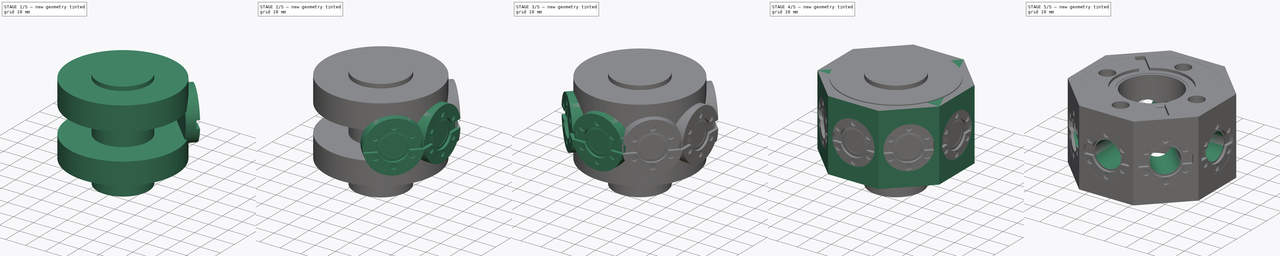
[diagram: build sequence overview — one tinted view per stage of 5, left to right]
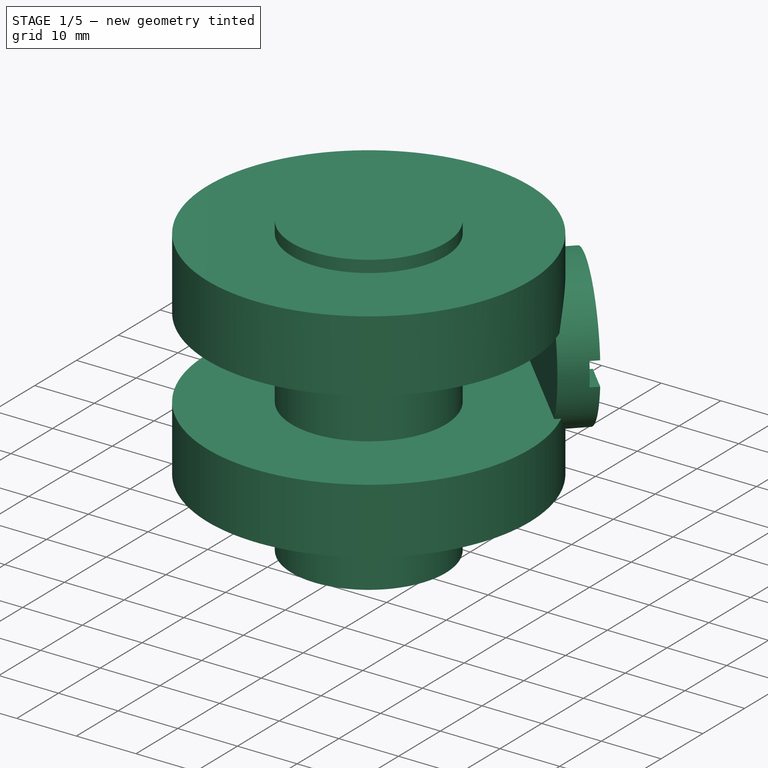
[diagram: stage 1 of 5 — iso view after this stage's code; geometry added in this stage tinted green]
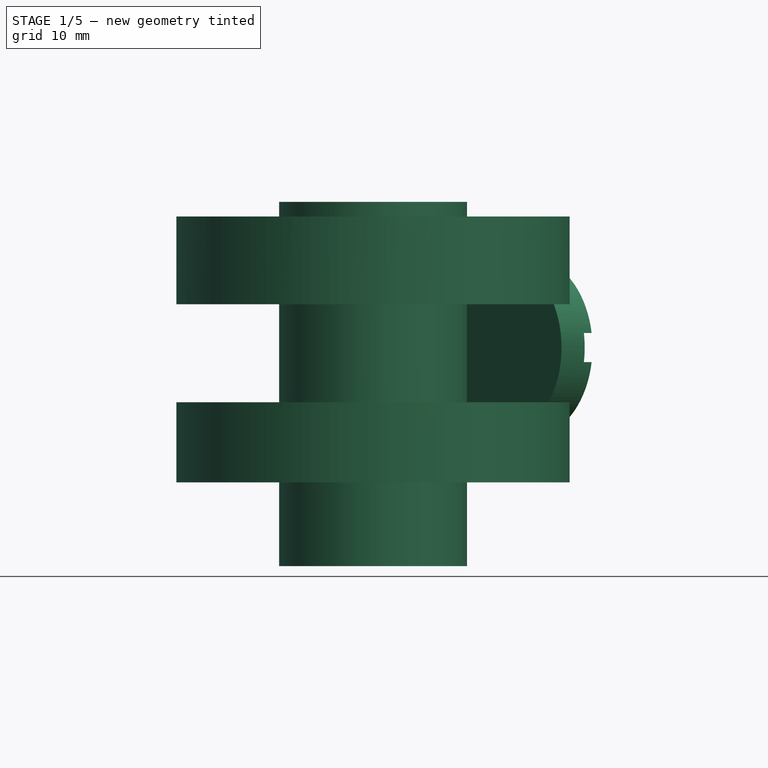
[diagram: stage 1 of 5 — front view after this stage's code; geometry added in this stage tinted green]
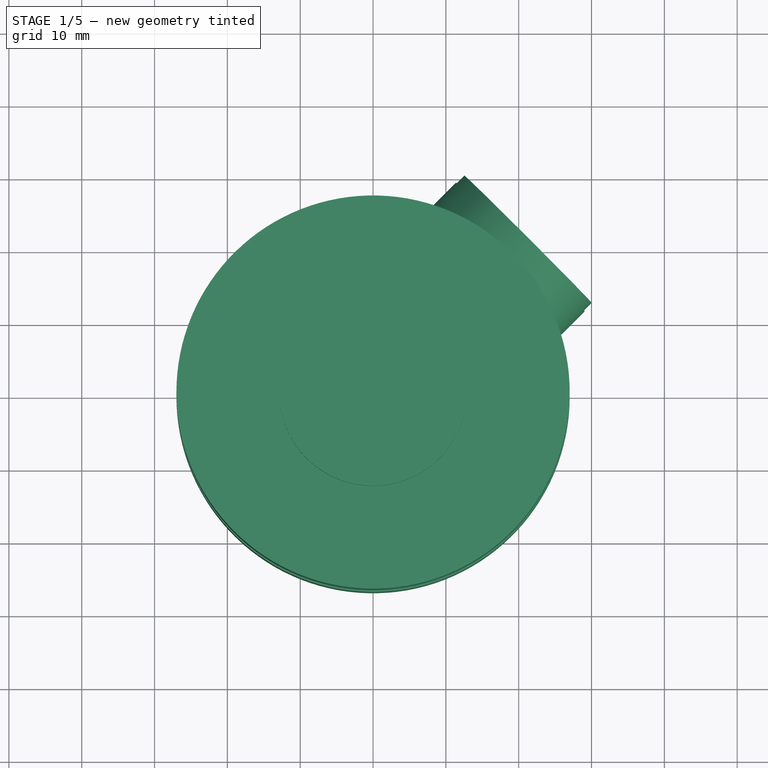
[diagram: stage 1 of 5 — top view after this stage's code; geometry added in this stage tinted green]
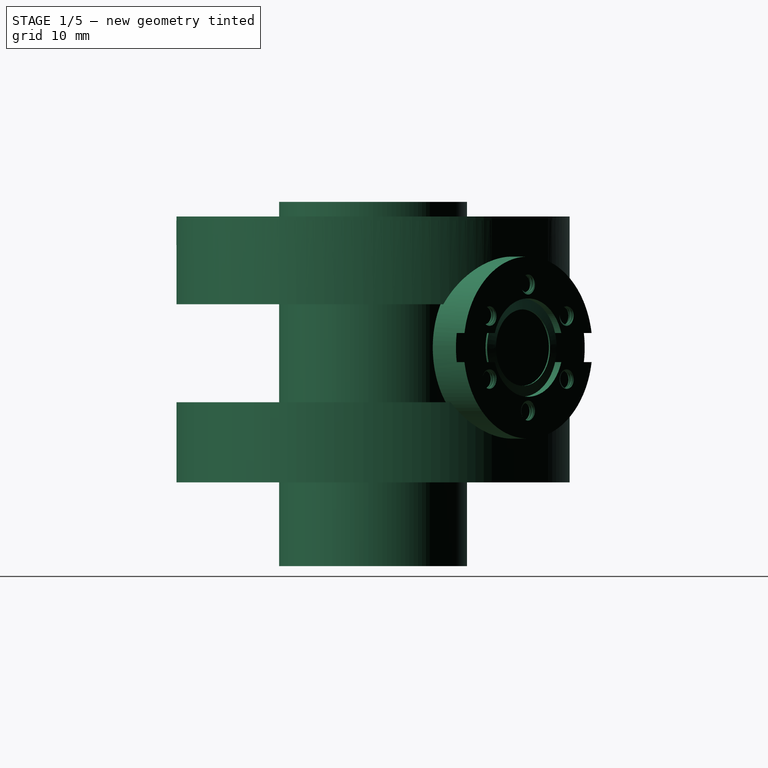
[diagram: stage 1 of 5 — right view after this stage's code; geometry added in this stage tinted green]
FCSTD DOCUMENT  (FreeCAD 0.21R33668 +7 (Git))
Label: CF25CF10Octagon
License: All rights reserved
LicenseURL: https://en.wikipedia.org/wiki/All_rights_reserved
objects: Part::Cylinder×57, Part::Cut×54, Part::Compound×27, Part::MultiFuse×25, Part::Box×20, Part::FeaturePython×18, Part::Cone×10, Spreadsheet::Sheet×2, Sketcher::SketchObject×1, PartDesign::Pad×1, PartDesign::Body×1
note: 205 computed .brp shape members not serialized (recipe doc carries the construction recipe); baked Part::Feature solids carry a one-line shape summary decoded from their .brp

FEATURE [Part::Box] Box016  label="Cube016"
  AttacherType = Attacher::AttachEngine3D
  Height = 1.5
  Length = 6.75
  Placement = pos=(6.25,-2,0) rot=(0,0,1;0rad)
  Width = 4
  expr: .Placement.Base.x = <<ConflatFlange>>.cf_sealrecess / 2 - 0.5
  expr: .Placement.Base.y = -2
  expr: Length = (<<ConflatFlange>>.cf_od - <<ConflatFlange>>.cf_sealrecess) / 2 + 1
FEATURE [Part::Box] Box017  label="Cube017"
  AttacherType = Attacher::AttachEngine3D
  Height = 1.5
  Length = 6.75
  Placement = pos=(-13,-2,0) rot=(0,0,1;0rad)
  Width = 4
  expr: .Placement.Base.x = -<<ConflatFlange>>.cf_sealrecess / 2 + 0.5 - ((<<ConflatFlange>>.cf_od - <<ConflatFlange>>.cf_sealrecess) / 2 + 1)
  expr: .Placement.Base.y = -2
  expr: Length = (<<ConflatFlange>>.cf_od - <<ConflatFlange>>.cf_sealrecess) / 2 + 1
FEATURE [Part::MultiFuse] Fusion022
  Placement = pos=(0,0,0) rot=(0,0,1;0.523599rad)
  Shapes = -> [Box017,Box016]
  expr: .Placement.Rotation.Angle = 360 / (<<ConflatFlange>>.cf_nbolts * 2)
FEATURE [Part::FeaturePython] ScrewTap006  label="3x2-ScrewTap006"  # Fasteners workbench fastener (typed FeaturePython)
  Placement = pos=(8.8,0,1) rot=(0,0,1;0rad)
  diameter = 29
  diameterCustom = 3
  invert = false
  leftHanded = false
  length = 2
  matchOuter = false
  offset = 0
  pitchCustom = 0.5
  thread = true
  type = 2
  expr: .Placement.Base.x = <<ConflatFlange>>.cf_boltcircle / 2
  expr: .Placement.Base.z = <<ConflatFlange>>.cf_thickness - <<ConflatFlange>>.cf_materialbelowtap
  expr: diameterCustom = <<ConflatFlange>>.cf_boltm
  expr: length = <<ConflatFlange>>.cf_thickness - <<ConflatFlange>>.cf_materialbelowtap
  expr: pitchCustom = <<ConflatFlange>>.cf_boltinclination
FEATURE [Part::Box] Box018  label="Cube018"
  AttacherType = Attacher::AttachEngine3D
  Height = 1.5
  Length = 6.75
  Placement = pos=(6.25,-2,0) rot=(0,0,1;0rad)
  Width = 4
  expr: .Placement.Base.x = <<ConflatFlange>>.cf_sealrecess / 2 - 0.5
  expr: .Placement.Base.y = -2
  expr: Length = (<<ConflatFlange>>.cf_od - <<ConflatFlange>>.cf_sealrecess) / 2 + 1
FEATURE [Part::Box] Box019  label="Cube019"
  AttacherType = Attacher::AttachEngine3D
  Height = 1.5
  Length = 6.75
  Placement = pos=(-13,-2,0) rot=(0,0,1;0rad)
  Width = 4
  expr: .Placement.Base.x = -<<ConflatFlange>>.cf_sealrecess / 2 + 0.5 - ((<<ConflatFlange>>.cf_od - <<ConflatFlange>>.cf_sealrecess) / 2 + 1)
  expr: .Placement.Base.y = -2
  expr: Length = (<<ConflatFlange>>.cf_od - <<ConflatFlange>>.cf_sealrecess) / 2 + 1
FEATURE [Part::Cone] Cone009
  Angle = 360
  AttacherType = Attacher::AttachEngine3D
  Height = 0.22
  Radius1 = 5.25
  Radius2 = 6.75
  expr: Height = 1.2 - 0.98
  expr: Radius1 = <<ConflatFlange>>.cf_knife / 2
  expr: Radius2 = <<ConflatFlange>>.cf_sealrecess / 2
FEATURE [Part::Cylinder] Cylinder062  label="Blank009"
  Angle = 360
  AttacherType = Attacher::AttachEngine3D
  FirstAngle = 0
  Height = 6
  Radius = 12.5
  SecondAngle = 0
  expr: Height = <<ConflatFlange>>.cf_thickness
  expr: Radius = <<ConflatFlange>>.cf_od / 2
FEATURE [Part::Cylinder] Cylinder063  label="SealRecess009"
  Angle = 360
  AttacherType = Attacher::AttachEngine3D
  FirstAngle = 0
  Height = 1.2
  Radius = 6.75
  SecondAngle = 0
  expr: Radius = <<ConflatFlange>>.cf_sealrecess / 2
FEATURE [Part::Cut] Cut056
  Base = -> Cylinder062
  Tool = -> Cylinder063
FEATURE [Part::Cylinder] Cylinder064
  Angle = 360
  AttacherType = Attacher::AttachEngine3D
  FirstAngle = 0
  Height = 0.22
  Radius = 5.25
  SecondAngle = 0
  expr: Height = 1.2 - 0.98
  expr: Radius = <<ConflatFlange>>.cf_knife / 2
FEATURE [Part::Cut] Cut057  label="KnifeEdge009"
  Base = -> Cone009
  Placement = pos=(0,0,0.98) rot=(0,0,1;0rad)
  Tool = -> Cylinder064
FEATURE [Part::Cylinder] Cylinder065
  Angle = 360
  AttacherType = Attacher::AttachEngine3D
  FirstAngle = 0
  Height = 1.5
  Radius = 6.75
  SecondAngle = 0
  expr: Radius = <<ConflatFlange>>.cf_sealrecess / 2
FEATURE [Part::MultiFuse] Fusion023  label="UndrilledBlank009"
  Shapes = -> [Cut056,Cut057]
FEATURE [Part::MultiFuse] Fusion024
  Placement = pos=(0,0,0) rot=(0,0,1;0.523599rad)
  Shapes = -> [Box019,Box018]
  expr: .Placement.Rotation.Angle = 360 / (<<ConflatFlange>>.cf_nbolts * 2)
FEATURE [Part::Cut] Cut059  label="LeakTestGrooves010"
  Base = -> Fusion024
  Tool = -> Cylinder065
FEATURE [Part::FeaturePython] ScrewTap007  label="3x2-ScrewTap007"  # Fasteners workbench fastener (typed FeaturePython)
  Placement = pos=(8.8,0,1) rot=(0,0,1;0rad)
  diameter = 29
  diameterCustom = 3
  invert = false
  leftHanded = false
  length = 2
  matchOuter = false
  offset = 0
  pitchCustom = 0.5
  thread = true
  type = 2
  expr: .Placement.Base.x = <<ConflatFlange>>.cf_boltcircle / 2
  expr: .Placement.Base.z = <<ConflatFlange>>.cf_thickness - <<ConflatFlange>>.cf_materialbelowtap
  expr: diameterCustom = <<ConflatFlange>>.cf_boltm
  expr: length = <<ConflatFlange>>.cf_thickness - <<ConflatFlange>>.cf_materialbelowtap
  expr: pitchCustom = <<ConflatFlange>>.cf_boltinclination
FEATURE [Part::FeaturePython] Array009  label="BoltHoleArray009"  # Draft array (typed FeaturePython)
  AlwaysSyncPlacement = false
  Angle = 360
  ArrayType = 1
  Axis = (0,0,1)
  Base = -> ScrewTap007
  Center = (0,0,0)
  Count = 6
  ExpandArray = false
  Fuse = false
  IntervalAxis = (0,0,0)
  IntervalX = (50,0,0)
  IntervalY = (0,50,0)
  IntervalZ = (0,0,50)
  NumberCircles = 3
  NumberPolar = 6
  NumberX = 2
  NumberY = 2
  NumberZ = 1
  PlacementList = 6 placements: [(8.8,0,1),(4.4,7.62102,1),(-4.4,7.62102,1),(-8.8,1.07769e-15,1),(-4.4,-7.62102,1),(4.4,-7.62102,1)]
  RadialDistance = 50
  ScaleList = (6) [(1,1,1),(1,1,1),(1,1,1),(1,1,1),(1,1,1),(1,1,1)]
  Symmetry = 1
  TangentialDistance = 25
  expr: NumberPolar = <<ConflatFlange>>.cf_nbolts
FEATURE [Part::Cut] Cut058  label="BlankFlange_NonRotatable_Tapped_NoGrooves007"
  Base = -> Fusion023
  Tool = -> Array009
FEATURE [Part::Cut] Cut060  label="BlankFlange_NonRotatable_Tapped007"
  Base = -> Cut058
  Placement = pos=(0,0,0) rot=(0,0,-1;0.523599rad)
  Tool = -> Cut059
FEATURE [Part::Compound] Compound025
  Links = -> [Cut060]
  Placement = pos=(0,30.1,12.5) rot=(1,0,0;1.5708rad)
FEATURE [Part::Compound] Compound026
  Links = -> [Compound025]
  Placement = pos=(0,0,0) rot=(0,0,1;5.49779rad)
FEATURE [Spreadsheet::Sheet] Spreadsheet001  label="ConflatFlange001"
  CF = 2
  cells = A1='CF; B1='Outside Diameter; C1='Maximum tube diameter; D1='Number of bolts; E1='Bolt hole diameter; F1='Tap hole diameter; G1='Bolt Thread (metric); H1='Bot inclination; I1='Bolt Circle; J1='Bolt position tolerance; K1='Seal recess; L1='Knife edge; M1='Pipe attachment depth; N1='Setback (inner rotatable); O1='Thickness; Q1='Calculated Quantities; A2==hiddenref(.CF.String); B2(cf_od)==.B5; C2(cf_maxtubedia)==.C5; D2(cf_nbolts)==.D5; E2(cf_boltdia)==.E5; F2(cf_tapdia)==.F5; G2(cf_boltm)==.G5; H2(cf_boltinclination)==.H5; I2(cf_boltcircle)==.I5; J2(cf_bolttolerance)==.J5; K2(cf_sealrecess)==.K5; L2(cf_knife)==.L5; M2(cf_pipedepth)==.M5; N2(cf_setbackrot)==.N5; O2(cf_thickness)==.O5; Q2='Knife edge width; R2(cf__kfwidth)==(cf_sealrecess - cf_knife) / 2; A3='10; B3=25; C3=12; D3=6; E3=3.3; F3=2.39; G3=3; H3=0.5; I3=17.6; J3=0.1; K3=13.5; L3=10.5; M3=3; N3=0; O3=6; Q3='Knife height; R3(cf__kfheight)==tan(20 * 3.14 / 180) * cf__kfwidth; A4='16; B4=33.8; C4=19.4; D4=6; E4=4.4; F4=3.14; G4=4; H4=0.7; I4=27; J4=0.1; K4=21.4; L4=18.3; M4=3.3; N4=5.9; O4=7; A5='25; B5=54; C5=25.8; D5=4; E5=6.8; F5=4.77; G5=6; H5=1; I5=41.3; J5=0.2; K5=33; L5=27.7; M5=4.3; N5=6; O5=11.5; A6='40; B6=69.9; C6=44.5; D6=6; E6=6.8; F6=4.77; G6=6; H6=1; I6=58.7; J6=0.2; K6=48.3; L6=41.9; M6=4.3; N6=7.7; O6=12.5; A7='50; B7=85.7; C7=51; D7=8; E7=8.4; F7=6.47; G7=8; H7=1.25; I7=72.4; J7=0.2; K7=61.8; L7=55.9; M7=4.9; N7=9.7; O7=16; A8='63; B8=114.3; C8=70; D8=8; E8=8.4; F8=6.47; G8=8; H8=1.25; I8=92.2; J8=0.2; K8=82.5; L8=77.2; M8=6.4; N8=12.7; O8=17; A9='75; B9=117.4; C9=76.2; D9=10; E9=8.4; F9=6.47; G9=8; H9=1.25; I9=102.3; J9=0.2; K9=91.6; L9=85.2; M9=6.5; N9=13; O9=17.5; A10='100; B10=152.4; C10=108; D10=16; E10=8.4; F10=6.47; G10=8; H10=1.25; I10=130.3; J10=0.2; K10=120.6; L10=115.3; M10=7.2; N10=14.3; O10=19.5; A11='125; B11=171.5; C11=127; D11=18; E11=8.4; F11=6.47; G11=8; H11=1.25; I11=151.6; J11=0.2; K11=141.8; L11=136.3; M11=7.2; N11=14.3; O11=21; A12='160; B12=203.2; C12=159; D12=20; E12=8.4; F12=6.47; G12=8; H12=1.25; I12=181; J12=0.2; K12=171.4; L12=166.1; M12=8; N12=15.9; O12=21; A13='200; B13=254; C13=206; D13=24; E13=8.4; F13=6.47; G13=8; H13=1.25; I13=231.8; J13=0.2; K13=222.2; L13=216.9; M13=8.6; N13=17.2; O13=24; +88 more cells
  expr: .CF.Enum = cells[<<A3:|>>]
  expr: .cells.Bind.B2.O2 = tuple(.cells; <<B>> + str(hiddenref(CF) + 3); <<O>> + str(hiddenref(CF) + 3))
FEATURE [Part::Cylinder] Cylinder067
  Angle = 360
  AttacherType = Attacher::AttachEngine3D
  FirstAngle = 0
  Height = 11
  Placement = pos=(0,0,-6) rot=(0,0,1;0rad)
  Radius = 27
  SecondAngle = 0
FEATURE [Part::Cylinder] Cylinder068
  Angle = 360
  AttacherType = Attacher::AttachEngine3D
  FirstAngle = 0
  Height = 11
  Placement = pos=(0,0,19.5) rot=(0,0,1;0rad)
  Radius = 27
  SecondAngle = 0
FEATURE [Part::MultiFuse] Fusion027
  Shapes = -> [Cylinder067,Cylinder068]
FEATURE [Part::Box] Box020  label="Cube020"
  AttacherType = Attacher::AttachEngine3D
  Height = 1.5
  Length = 11.5
  Placement = pos=(16,-2,0) rot=(0,0,1;0rad)
  Width = 4
  expr: .Placement.Base.x = <<ConflatFlange001>>.cf_sealrecess / 2 - 0.5
  expr: .Placement.Base.y = -2
  expr: Length = (<<ConflatFlange001>>.cf_od - <<ConflatFlange001>>.cf_sealrecess) / 2 + 1
FEATURE [Part::Box] Box021  label="Cube021"
  AttacherType = Attacher::AttachEngine3D
  Height = 1.5
  Length = 11.5
  Placement = pos=(-27.5,-2,0) rot=(0,0,1;0rad)
  Width = 4
  expr: .Placement.Base.x = -<<ConflatFlange001>>.cf_sealrecess / 2 + 0.5 - ((<<ConflatFlange001>>.cf_od - <<ConflatFlange001>>.cf_sealrecess) / 2 + 1)
  expr: .Placement.Base.y = -2
  expr: Length = (<<ConflatFlange001>>.cf_od - <<ConflatFlange001>>.cf_sealrecess) / 2 + 1
FEATURE [Part::Cone] Cone010
  Angle = 360
  AttacherType = Attacher::AttachEngine3D
  Height = 0.22
  Radius1 = 13.85
  Radius2 = 16.5
  expr: Height = 1.2 - 0.98
  expr: Radius1 = <<ConflatFlange001>>.cf_knife / 2
  expr: Radius2 = <<ConflatFlange001>>.cf_sealrecess / 2
FEATURE [Part::Cylinder] Cylinder069  label="SealRecess010"
  Angle = 360
  AttacherType = Attacher::AttachEngine3D
  FirstAngle = 0
  Height = 1.2
  Radius = 16.5
  SecondAngle = 0
  expr: Radius = <<ConflatFlange001>>.cf_sealrecess / 2
FEATURE [Part::Cylinder] Cylinder070
  Angle = 360
  AttacherType = Attacher::AttachEngine3D
  FirstAngle = 0
  Height = 0.22
  Radius = 13.85
  SecondAngle = 0
  expr: Height = 1.2 - 0.98
  expr: Radius = <<ConflatFlange001>>.cf_knife / 2
FEATURE [Part::Cut] Cut064  label="KnifeEdge010"
  Base = -> Cone010
  Placement = pos=(0,0,0.98) rot=(0,0,1;0rad)
  Tool = -> Cylinder070
FEATURE [Part::Cylinder] Cylinder071
  Angle = 360
  AttacherType = Attacher::AttachEngine3D
  FirstAngle = 0
  Height = 11.5
  Placement = pos=(20.65,0,0) rot=(0,0,1;0rad)
  Radius = 3.4
  SecondAngle = 0
  expr: .Placement.Base.x = <<ConflatFlange001>>.cf_boltcircle / 2
  expr: Height = <<ConflatFlange001>>.cf_thickness
  expr: Radius = <<ConflatFlange001>>.cf_boltdia / 2
FEATURE [Part::FeaturePython] Array010  label="BoltHoleArray010"  # Draft array (typed FeaturePython)
  AlwaysSyncPlacement = false
  Angle = 360
  ArrayType = 1
  Axis = (0,0,1)
  Base = -> Cylinder071
  Center = (0,0,0)
  Count = 4
  ExpandArray = false
  Fuse = false
  IntervalAxis = (0,0,0)
  IntervalX = (50,0,0)
  IntervalY = (0,50,0)
  IntervalZ = (0,0,50)
  NumberCircles = 3
  NumberPolar = 4
  NumberX = 2
  NumberY = 2
  NumberZ = 1
  PlacementList = 4 placements: [(20.65,0,0),(0,20.65,0),(-20.65,2.5289e-15,0),(-4.58522e-15,-20.65,0)]
  RadialDistance = 50
  ScaleList = (4) [(1,1,1),(1,1,1),(1,1,1),(1,1,1)]
  Symmetry = 1
  TangentialDistance = 25
  expr: NumberPolar = <<ConflatFlange001>>.cf_nbolts
FEATURE [Part::Cylinder] Cylinder072
  Angle = 360
  AttacherType = Attacher::AttachEngine3D
  FirstAngle = 0
  Height = 1.5
  Radius = 16.5
  SecondAngle = 0
  expr: Radius = <<ConflatFlange001>>.cf_sealrecess / 2
FEATURE [Part::Cylinder] Cylinder073  label="Blank010"
  Angle = 360
  AttacherType = Attacher::AttachEngine3D
  FirstAngle = 0
  Height = 11.5
  Radius = 27
  SecondAngle = 0
  expr: Height = <<ConflatFlange001>>.cf_thickness
  expr: Radius = <<ConflatFlange001>>.cf_od / 2
FEATURE [Part::Cut] Cut068
  Base = -> Cylinder073
  Tool = -> Cylinder069
FEATURE [Part::MultiFuse] Fusion028
  Placement = pos=(0,0,0) rot=(0,0,1;0.785398rad)
  Shapes = -> [Box021,Box020]
  expr: .Placement.Rotation.Angle = 360 / (<<ConflatFlange001>>.cf_nbolts * 2)
FEATURE [Part::Cut] Cut066  label="LeakTestGrooves011"
  Base = -> Fusion028
  Tool = -> Cylinder072
FEATURE [Part::MultiFuse] Fusion029  label="UndrilledBlank010"
  Shapes = -> [Cut068,Cut064]
FEATURE [Part::Cut] Cut065  label="BlankFlange_NonRotatable_NoGrooves001"
  Base = -> Fusion029
  Tool = -> Array010
FEATURE [Part::Cut] Cut067  label="BlankFlange_NonRotatable001"
  Base = -> Cut065
  Placement = pos=(0,0,29.95) rot=(0,1,0;3.14159rad)
  Tool = -> Cut066
FEATURE [Part::Cylinder] Cylinder074
  Angle = 360
  AttacherType = Attacher::AttachEngine3D
  FirstAngle = 0
  Height = 50
  Placement = pos=(0,0,-17.5) rot=(0,0,1;0rad)
  Radius = 12.9
  SecondAngle = 0
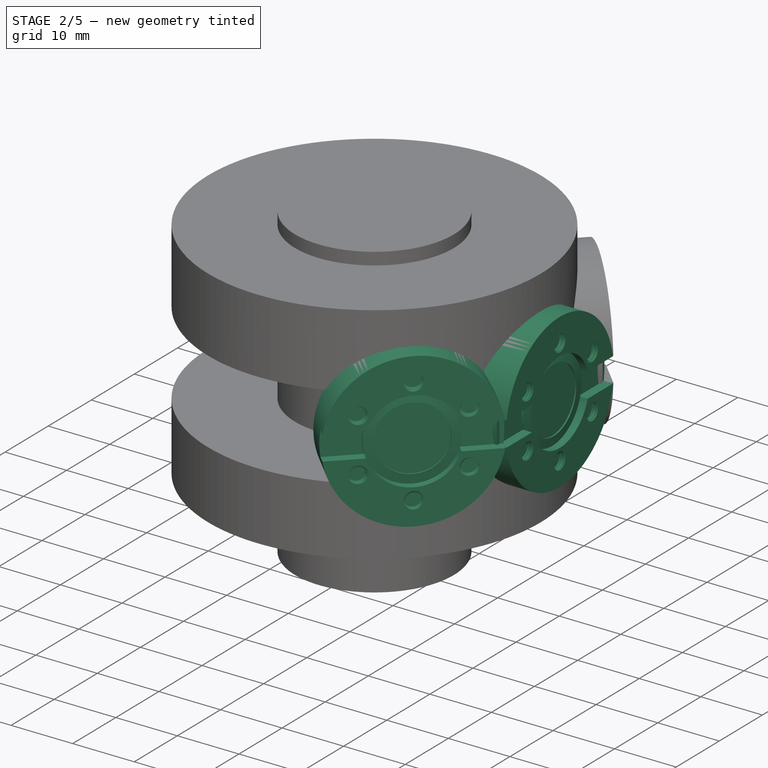
[diagram: stage 2 of 5 — iso view after this stage's code; geometry added in this stage tinted green]
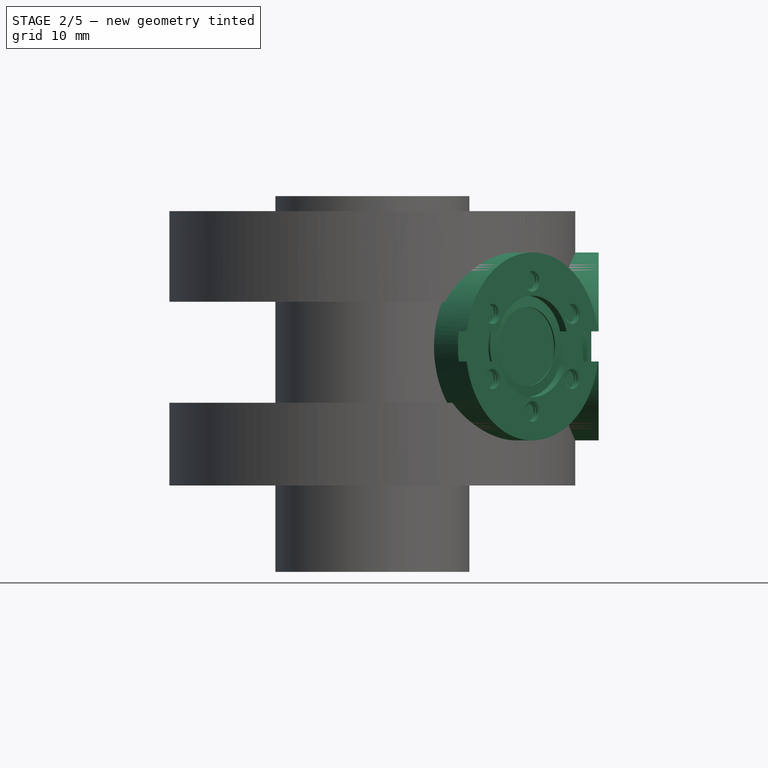
[diagram: stage 2 of 5 — front view after this stage's code; geometry added in this stage tinted green]
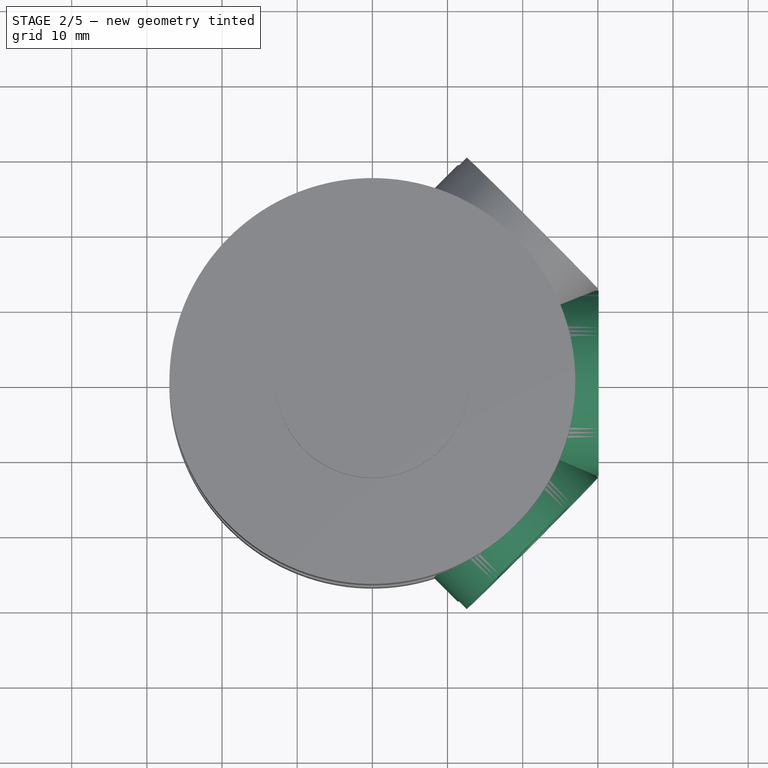
[diagram: stage 2 of 5 — top view after this stage's code; geometry added in this stage tinted green]
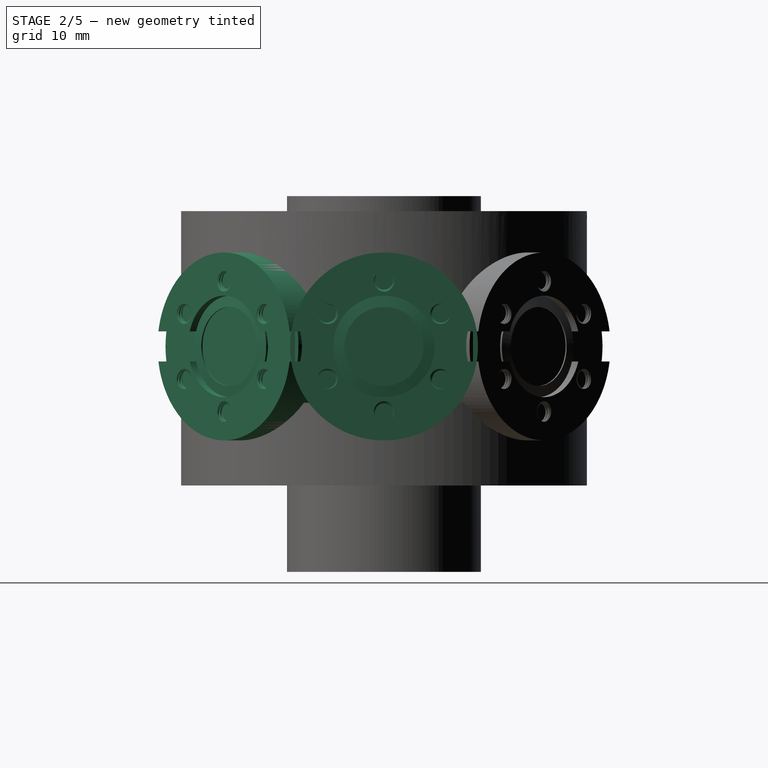
[diagram: stage 2 of 5 — right view after this stage's code; geometry added in this stage tinted green]
FEATURE [Part::Box] Box012  label="Cube012"
  AttacherType = Attacher::AttachEngine3D
  Height = 1.5
  Length = 6.75
  Placement = pos=(6.25,-2,0) rot=(0,0,1;0rad)
  Width = 4
  expr: .Placement.Base.x = <<ConflatFlange>>.cf_sealrecess / 2 - 0.5
  expr: .Placement.Base.y = -2
  expr: Length = (<<ConflatFlange>>.cf_od - <<ConflatFlange>>.cf_sealrecess) / 2 + 1
FEATURE [Part::Box] Box013  label="Cube013"
  AttacherType = Attacher::AttachEngine3D
  Height = 1.5
  Length = 6.75
  Placement = pos=(-13,-2,0) rot=(0,0,1;0rad)
  Width = 4
  expr: .Placement.Base.x = -<<ConflatFlange>>.cf_sealrecess / 2 + 0.5 - ((<<ConflatFlange>>.cf_od - <<ConflatFlange>>.cf_sealrecess) / 2 + 1)
  expr: .Placement.Base.y = -2
  expr: Length = (<<ConflatFlange>>.cf_od - <<ConflatFlange>>.cf_sealrecess) / 2 + 1
FEATURE [Part::Cone] Cone006
  Angle = 360
  AttacherType = Attacher::AttachEngine3D
  Height = 0.22
  Radius1 = 5.25
  Radius2 = 6.75
  expr: Height = 1.2 - 0.98
  expr: Radius1 = <<ConflatFlange>>.cf_knife / 2
  expr: Radius2 = <<ConflatFlange>>.cf_sealrecess / 2
FEATURE [Part::Cylinder] Cylinder050  label="Blank006"
  Angle = 360
  AttacherType = Attacher::AttachEngine3D
  FirstAngle = 0
  Height = 6
  Radius = 12.5
  SecondAngle = 0
  expr: Height = <<ConflatFlange>>.cf_thickness
  expr: Radius = <<ConflatFlange>>.cf_od / 2
FEATURE [Part::Cylinder] Cylinder051  label="SealRecess006"
  Angle = 360
  AttacherType = Attacher::AttachEngine3D
  FirstAngle = 0
  Height = 1.2
  Radius = 6.75
  SecondAngle = 0
  expr: Radius = <<ConflatFlange>>.cf_sealrecess / 2
FEATURE [Part::Cut] Cut041
  Base = -> Cylinder050
  Tool = -> Cylinder051
FEATURE [Part::Cylinder] Cylinder052
  Angle = 360
  AttacherType = Attacher::AttachEngine3D
  FirstAngle = 0
  Height = 0.22
  Radius = 5.25
  SecondAngle = 0
  expr: Height = 1.2 - 0.98
  expr: Radius = <<ConflatFlange>>.cf_knife / 2
FEATURE [Part::Cut] Cut042  label="KnifeEdge006"
  Base = -> Cone006
  Placement = pos=(0,0,0.98) rot=(0,0,1;0rad)
  Tool = -> Cylinder052
FEATURE [Part::MultiFuse] Fusion017  label="UndrilledBlank006"
  Shapes = -> [Cut041,Cut042]
FEATURE [Part::MultiFuse] Fusion018
  Placement = pos=(0,0,0) rot=(0,0,1;0.523599rad)
  Shapes = -> [Box013,Box012]
  expr: .Placement.Rotation.Angle = 360 / (<<ConflatFlange>>.cf_nbolts * 2)
FEATURE [Part::FeaturePython] ScrewTap004  label="3x2-ScrewTap004"  # Fasteners workbench fastener (typed FeaturePython)
  Placement = pos=(8.8,0,1) rot=(0,0,1;0rad)
  diameter = 29
  diameterCustom = 3
  invert = false
  leftHanded = false
  length = 2
  matchOuter = false
  offset = 0
  pitchCustom = 0.5
  thread = true
  type = 2
  expr: .Placement.Base.x = <<ConflatFlange>>.cf_boltcircle / 2
  expr: .Placement.Base.z = <<ConflatFlange>>.cf_thickness - <<ConflatFlange>>.cf_materialbelowtap
  expr: diameterCustom = <<ConflatFlange>>.cf_boltm
  expr: length = <<ConflatFlange>>.cf_thickness - <<ConflatFlange>>.cf_materialbelowtap
  expr: pitchCustom = <<ConflatFlange>>.cf_boltinclination
FEATURE [Part::Box] Box014  label="Cube014"
  AttacherType = Attacher::AttachEngine3D
  Height = 1.5
  Length = 6.75
  Placement = pos=(6.25,-2,0) rot=(0,0,1;0rad)
  Width = 4
  expr: .Placement.Base.x = <<ConflatFlange>>.cf_sealrecess / 2 - 0.5
  expr: .Placement.Base.y = -2
  expr: Length = (<<ConflatFlange>>.cf_od - <<ConflatFlange>>.cf_sealrecess) / 2 + 1
FEATURE [Part::Box] Box015  label="Cube015"
  AttacherType = Attacher::AttachEngine3D
  Height = 1.5
  Length = 6.75
  Placement = pos=(-13,-2,0) rot=(0,0,1;0rad)
  Width = 4
  expr: .Placement.Base.x = -<<ConflatFlange>>.cf_sealrecess / 2 + 0.5 - ((<<ConflatFlange>>.cf_od - <<ConflatFlange>>.cf_sealrecess) / 2 + 1)
  expr: .Placement.Base.y = -2
  expr: Length = (<<ConflatFlange>>.cf_od - <<ConflatFlange>>.cf_sealrecess) / 2 + 1
FEATURE [Part::Cone] Cone007
  Angle = 360
  AttacherType = Attacher::AttachEngine3D
  Height = 0.22
  Radius1 = 5.25
  Radius2 = 6.75
  expr: Height = 1.2 - 0.98
  expr: Radius1 = <<ConflatFlange>>.cf_knife / 2
  expr: Radius2 = <<ConflatFlange>>.cf_sealrecess / 2
FEATURE [Part::Cylinder] Cylinder054  label="Blank007"
  Angle = 360
  AttacherType = Attacher::AttachEngine3D
  FirstAngle = 0
  Height = 6
  Radius = 12.5
  SecondAngle = 0
  expr: Height = <<ConflatFlange>>.cf_thickness
  expr: Radius = <<ConflatFlange>>.cf_od / 2
FEATURE [Part::Cylinder] Cylinder055  label="SealRecess007"
  Angle = 360
  AttacherType = Attacher::AttachEngine3D
  FirstAngle = 0
  Height = 1.2
  Radius = 6.75
  SecondAngle = 0
  expr: Radius = <<ConflatFlange>>.cf_sealrecess / 2
FEATURE [Part::Cut] Cut046
  Base = -> Cylinder054
  Tool = -> Cylinder055
FEATURE [Part::Cylinder] Cylinder056
  Angle = 360
  AttacherType = Attacher::AttachEngine3D
  FirstAngle = 0
  Height = 0.22
  Radius = 5.25
  SecondAngle = 0
  expr: Height = 1.2 - 0.98
  expr: Radius = <<ConflatFlange>>.cf_knife / 2
FEATURE [Part::Cut] Cut047  label="KnifeEdge007"
  Base = -> Cone007
  Placement = pos=(0,0,0.98) rot=(0,0,1;0rad)
  Tool = -> Cylinder056
FEATURE [Part::Cylinder] Cylinder057
  Angle = 360
  AttacherType = Attacher::AttachEngine3D
  FirstAngle = 0
  Height = 1.5
  Radius = 6.75
  SecondAngle = 0
  expr: Radius = <<ConflatFlange>>.cf_sealrecess / 2
FEATURE [Part::MultiFuse] Fusion019  label="UndrilledBlank007"
  Shapes = -> [Cut046,Cut047]
FEATURE [Part::MultiFuse] Fusion020
  Placement = pos=(0,0,0) rot=(0,0,1;0.523599rad)
  Shapes = -> [Box015,Box014]
  expr: .Placement.Rotation.Angle = 360 / (<<ConflatFlange>>.cf_nbolts * 2)
FEATURE [Part::Cut] Cut049  label="LeakTestGrooves008"
  Base = -> Fusion020
  Tool = -> Cylinder057
FEATURE [Part::FeaturePython] ScrewTap005  label="3x2-ScrewTap005"  # Fasteners workbench fastener (typed FeaturePython)
  Placement = pos=(8.8,0,1) rot=(0,0,1;0rad)
  diameter = 29
  diameterCustom = 3
  invert = false
  leftHanded = false
  length = 2
  matchOuter = false
  offset = 0
  pitchCustom = 0.5
  thread = true
  type = 2
  expr: .Placement.Base.x = <<ConflatFlange>>.cf_boltcircle / 2
  expr: .Placement.Base.z = <<ConflatFlange>>.cf_thickness - <<ConflatFlange>>.cf_materialbelowtap
  expr: diameterCustom = <<ConflatFlange>>.cf_boltm
  expr: length = <<ConflatFlange>>.cf_thickness - <<ConflatFlange>>.cf_materialbelowtap
  expr: pitchCustom = <<ConflatFlange>>.cf_boltinclination
FEATURE [Part::FeaturePython] Array007  label="BoltHoleArray007"  # Draft array (typed FeaturePython)
  AlwaysSyncPlacement = false
  Angle = 360
  ArrayType = 1
  Axis = (0,0,1)
  Base = -> ScrewTap005
  Center = (0,0,0)
  Count = 6
  ExpandArray = false
  Fuse = false
  IntervalAxis = (0,0,0)
  IntervalX = (50,0,0)
  IntervalY = (0,50,0)
  IntervalZ = (0,0,50)
  NumberCircles = 3
  NumberPolar = 6
  NumberX = 2
  NumberY = 2
  NumberZ = 1
  PlacementList = 6 placements: [(8.8,0,1),(4.4,7.62102,1),(-4.4,7.62102,1),(-8.8,1.07769e-15,1),(-4.4,-7.62102,1),(4.4,-7.62102,1)]
  RadialDistance = 50
  ScaleList = (6) [(1,1,1),(1,1,1),(1,1,1),(1,1,1),(1,1,1),(1,1,1)]
  Symmetry = 1
  TangentialDistance = 25
  expr: NumberPolar = <<ConflatFlange>>.cf_nbolts
FEATURE [Part::Cut] Cut048  label="BlankFlange_NonRotatable_Tapped_NoGrooves005"
  Base = -> Fusion019
  Tool = -> Array007
FEATURE [Part::Cut] Cut050  label="BlankFlange_NonRotatable_Tapped005"
  Base = -> Cut048
  Placement = pos=(0,0,0) rot=(0,0,-1;0.523599rad)
  Tool = -> Cut049
FEATURE [Part::Compound] Compound021
  Links = -> [Cut050]
  Placement = pos=(0,30.1,12.5) rot=(1,0,0;1.5708rad)
FEATURE [Part::Compound] Compound022
  Links = -> [Compound021]
  Placement = pos=(0,0,0) rot=(0,0,1;3.92699rad)
FEATURE [Part::Cone] Cone008
  Angle = 360
  AttacherType = Attacher::AttachEngine3D
  Height = 0.22
  Radius1 = 5.25
  Radius2 = 6.75
  expr: Height = 1.2 - 0.98
  expr: Radius1 = <<ConflatFlange>>.cf_knife / 2
  expr: Radius2 = <<ConflatFlange>>.cf_sealrecess / 2
FEATURE [Part::Cylinder] Cylinder058  label="Blank008"
  Angle = 360
  AttacherType = Attacher::AttachEngine3D
  FirstAngle = 0
  Height = 6
  Radius = 12.5
  SecondAngle = 0
  expr: Height = <<ConflatFlange>>.cf_thickness
  expr: Radius = <<ConflatFlange>>.cf_od / 2
FEATURE [Part::Cylinder] Cylinder059  label="SealRecess008"
  Angle = 360
  AttacherType = Attacher::AttachEngine3D
  FirstAngle = 0
  Height = 1.2
  Radius = 6.75
  SecondAngle = 0
  expr: Radius = <<ConflatFlange>>.cf_sealrecess / 2
FEATURE [Part::Cut] Cut051
  Base = -> Cylinder058
  Tool = -> Cylinder059
FEATURE [Part::Cylinder] Cylinder060
  Angle = 360
  AttacherType = Attacher::AttachEngine3D
  FirstAngle = 0
  Height = 0.22
  Radius = 5.25
  SecondAngle = 0
  expr: Height = 1.2 - 0.98
  expr: Radius = <<ConflatFlange>>.cf_knife / 2
FEATURE [Part::Cut] Cut052  label="KnifeEdge008"
  Base = -> Cone008
  Placement = pos=(0,0,0.98) rot=(0,0,1;0rad)
  Tool = -> Cylinder060
FEATURE [Part::Cylinder] Cylinder061
  Angle = 360
  AttacherType = Attacher::AttachEngine3D
  FirstAngle = 0
  Height = 1.5
  Radius = 6.75
  SecondAngle = 0
  expr: Radius = <<ConflatFlange>>.cf_sealrecess / 2
FEATURE [Part::MultiFuse] Fusion021  label="UndrilledBlank008"
  Shapes = -> [Cut051,Cut052]
FEATURE [Part::Cut] Cut054  label="LeakTestGrooves009"
  Base = -> Fusion022
  Tool = -> Cylinder061
FEATURE [Part::FeaturePython] Array008  label="BoltHoleArray008"  # Draft array (typed FeaturePython)
  AlwaysSyncPlacement = false
  Angle = 360
  ArrayType = 1
  Axis = (0,0,1)
  Base = -> ScrewTap006
  Center = (0,0,0)
  Count = 6
  ExpandArray = false
  Fuse = false
  IntervalAxis = (0,0,0)
  IntervalX = (50,0,0)
  IntervalY = (0,50,0)
  IntervalZ = (0,0,50)
  NumberCircles = 3
  NumberPolar = 6
  NumberX = 2
  NumberY = 2
  NumberZ = 1
  PlacementList = 6 placements: [(8.8,0,1),(4.4,7.62102,1),(-4.4,7.62102,1),(-8.8,1.07769e-15,1),(-4.4,-7.62102,1),(4.4,-7.62102,1)]
  RadialDistance = 50
  ScaleList = (6) [(1,1,1),(1,1,1),(1,1,1),(1,1,1),(1,1,1),(1,1,1)]
  Symmetry = 1
  TangentialDistance = 25
  expr: NumberPolar = <<ConflatFlange>>.cf_nbolts
FEATURE [Part::Cut] Cut053  label="BlankFlange_NonRotatable_Tapped_NoGrooves006"
  Base = -> Fusion021
  Tool = -> Array008
FEATURE [Part::Cut] Cut055  label="BlankFlange_NonRotatable_Tapped006"
  Base = -> Cut053
  Placement = pos=(0,0,0) rot=(0,0,-1;0.523599rad)
  Tool = -> Cut054
FEATURE [Part::Compound] Compound023
  Links = -> [Cut055]
  Placement = pos=(0,30.1,12.5) rot=(1,0,0;1.5708rad)
FEATURE [Part::Compound] Compound024
  Links = -> [Compound023]
  Placement = pos=(0,0,0) rot=(0,0,1;4.71239rad)
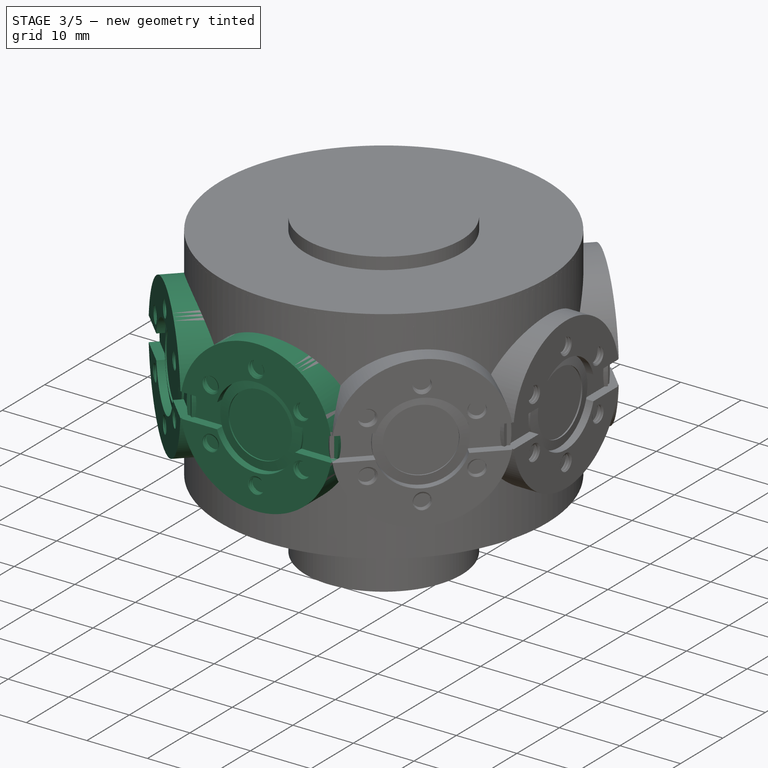
[diagram: stage 3 of 5 — iso view after this stage's code; geometry added in this stage tinted green]
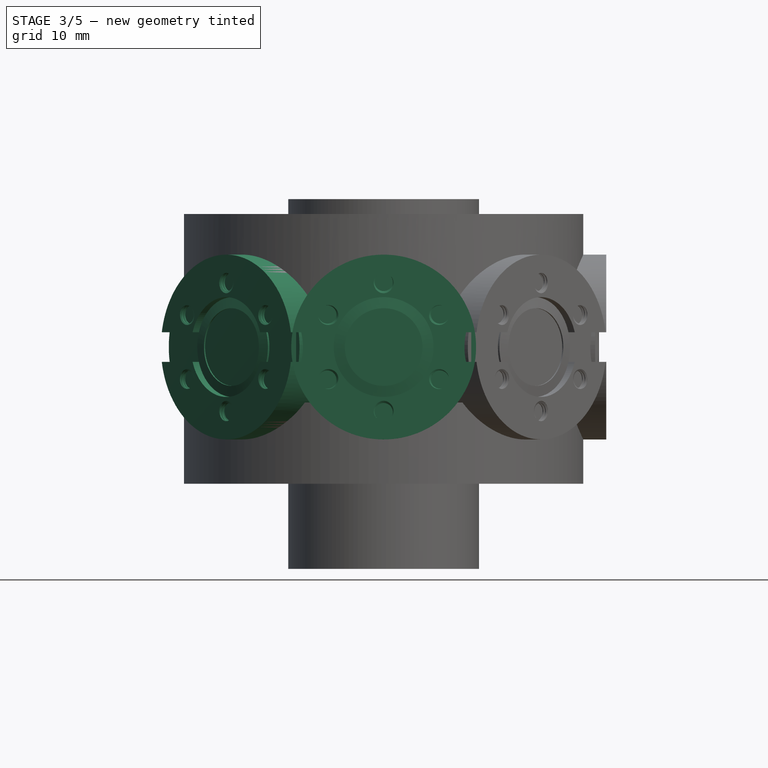
[diagram: stage 3 of 5 — front view after this stage's code; geometry added in this stage tinted green]
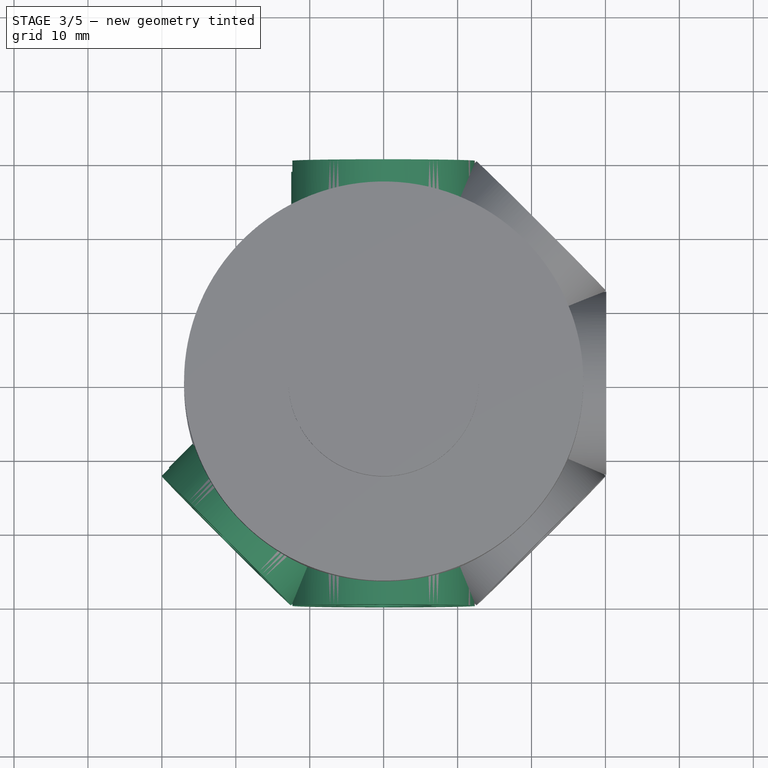
[diagram: stage 3 of 5 — top view after this stage's code; geometry added in this stage tinted green]
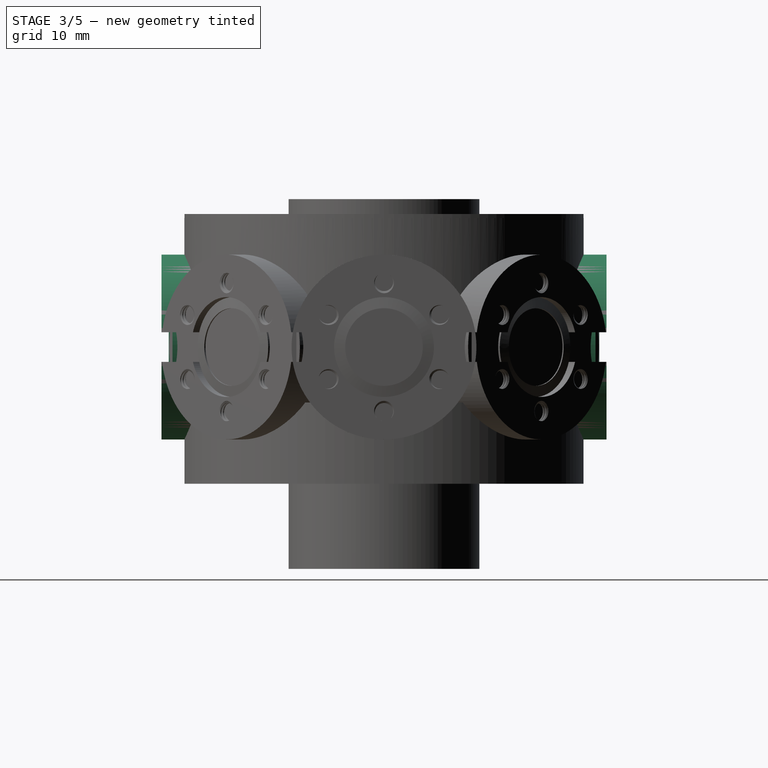
[diagram: stage 3 of 5 — right view after this stage's code; geometry added in this stage tinted green]
FEATURE [Part::Box] Box008  label="Cube008"
  AttacherType = Attacher::AttachEngine3D
  Height = 1.5
  Length = 6.75
  Placement = pos=(6.25,-2,0) rot=(0,0,1;0rad)
  Width = 4
  expr: .Placement.Base.x = <<ConflatFlange>>.cf_sealrecess / 2 - 0.5
  expr: .Placement.Base.y = -2
  expr: Length = (<<ConflatFlange>>.cf_od - <<ConflatFlange>>.cf_sealrecess) / 2 + 1
FEATURE [Part::Box] Box009  label="Cube009"
  AttacherType = Attacher::AttachEngine3D
  Height = 1.5
  Length = 6.75
  Placement = pos=(-13,-2,0) rot=(0,0,1;0rad)
  Width = 4
  expr: .Placement.Base.x = -<<ConflatFlange>>.cf_sealrecess / 2 + 0.5 - ((<<ConflatFlange>>.cf_od - <<ConflatFlange>>.cf_sealrecess) / 2 + 1)
  expr: .Placement.Base.y = -2
  expr: Length = (<<ConflatFlange>>.cf_od - <<ConflatFlange>>.cf_sealrecess) / 2 + 1
FEATURE [Part::Cone] Cone004
  Angle = 360
  AttacherType = Attacher::AttachEngine3D
  Height = 0.22
  Radius1 = 5.25
  Radius2 = 6.75
  expr: Height = 1.2 - 0.98
  expr: Radius1 = <<ConflatFlange>>.cf_knife / 2
  expr: Radius2 = <<ConflatFlange>>.cf_sealrecess / 2
FEATURE [Part::Cylinder] Cylinder042  label="Blank004"
  Angle = 360
  AttacherType = Attacher::AttachEngine3D
  FirstAngle = 0
  Height = 6
  Radius = 12.5
  SecondAngle = 0
  expr: Height = <<ConflatFlange>>.cf_thickness
  expr: Radius = <<ConflatFlange>>.cf_od / 2
FEATURE [Part::Cylinder] Cylinder043  label="SealRecess004"
  Angle = 360
  AttacherType = Attacher::AttachEngine3D
  FirstAngle = 0
  Height = 1.2
  Radius = 6.75
  SecondAngle = 0
  expr: Radius = <<ConflatFlange>>.cf_sealrecess / 2
FEATURE [Part::Cut] Cut031
  Base = -> Cylinder042
  Tool = -> Cylinder043
FEATURE [Part::Cylinder] Cylinder044
  Angle = 360
  AttacherType = Attacher::AttachEngine3D
  FirstAngle = 0
  Height = 0.22
  Radius = 5.25
  SecondAngle = 0
  expr: Height = 1.2 - 0.98
  expr: Radius = <<ConflatFlange>>.cf_knife / 2
FEATURE [Part::Cut] Cut032  label="KnifeEdge004"
  Base = -> Cone004
  Placement = pos=(0,0,0.98) rot=(0,0,1;0rad)
  Tool = -> Cylinder044
FEATURE [Part::Cylinder] Cylinder045
  Angle = 360
  AttacherType = Attacher::AttachEngine3D
  FirstAngle = 0
  Height = 1.5
  Radius = 6.75
  SecondAngle = 0
  expr: Radius = <<ConflatFlange>>.cf_sealrecess / 2
FEATURE [Part::MultiFuse] Fusion013  label="UndrilledBlank004"
  Shapes = -> [Cut031,Cut032]
FEATURE [Part::MultiFuse] Fusion014
  Placement = pos=(0,0,0) rot=(0,0,1;0.523599rad)
  Shapes = -> [Box009,Box008]
  expr: .Placement.Rotation.Angle = 360 / (<<ConflatFlange>>.cf_nbolts * 2)
FEATURE [Part::Cut] Cut034  label="LeakTestGrooves005"
  Base = -> Fusion014
  Tool = -> Cylinder045
FEATURE [Part::FeaturePython] ScrewTap002  label="3x2-ScrewTap002"  # Fasteners workbench fastener (typed FeaturePython)
  Placement = pos=(8.8,0,1) rot=(0,0,1;0rad)
  diameter = 29
  diameterCustom = 3
  invert = false
  leftHanded = false
  length = 2
  matchOuter = false
  offset = 0
  pitchCustom = 0.5
  thread = true
  type = 2
  expr: .Placement.Base.x = <<ConflatFlange>>.cf_boltcircle / 2
  expr: .Placement.Base.z = <<ConflatFlange>>.cf_thickness - <<ConflatFlange>>.cf_materialbelowtap
  expr: diameterCustom = <<ConflatFlange>>.cf_boltm
  expr: length = <<ConflatFlange>>.cf_thickness - <<ConflatFlange>>.cf_materialbelowtap
  expr: pitchCustom = <<ConflatFlange>>.cf_boltinclination
FEATURE [Part::FeaturePython] Array004  label="BoltHoleArray004"  # Draft array (typed FeaturePython)
  AlwaysSyncPlacement = false
  Angle = 360
  ArrayType = 1
  Axis = (0,0,1)
  Base = -> ScrewTap002
  Center = (0,0,0)
  Count = 6
  ExpandArray = false
  Fuse = false
  IntervalAxis = (0,0,0)
  IntervalX = (50,0,0)
  IntervalY = (0,50,0)
  IntervalZ = (0,0,50)
  NumberCircles = 3
  NumberPolar = 6
  NumberX = 2
  NumberY = 2
  NumberZ = 1
  PlacementList = 6 placements: [(8.8,0,1),(4.4,7.62102,1),(-4.4,7.62102,1),(-8.8,1.07769e-15,1),(-4.4,-7.62102,1),(4.4,-7.62102,1)]
  RadialDistance = 50
  ScaleList = (6) [(1,1,1),(1,1,1),(1,1,1),(1,1,1),(1,1,1),(1,1,1)]
  Symmetry = 1
  TangentialDistance = 25
  expr: NumberPolar = <<ConflatFlange>>.cf_nbolts
FEATURE [Part::Cut] Cut033  label="BlankFlange_NonRotatable_Tapped_NoGrooves002"
  Base = -> Fusion013
  Tool = -> Array004
FEATURE [Part::Cut] Cut035  label="BlankFlange_NonRotatable_Tapped002"
  Base = -> Cut033
  Placement = pos=(0,0,0) rot=(0,0,-1;0.523599rad)
  Tool = -> Cut034
FEATURE [Part::Compound] Compound015
  Links = -> [Cut035]
  Placement = pos=(0,30.1,12.5) rot=(1,0,0;1.5708rad)
FEATURE [Part::Box] Box010  label="Cube010"
  AttacherType = Attacher::AttachEngine3D
  Height = 1.5
  Length = 6.75
  Placement = pos=(6.25,-2,0) rot=(0,0,1;0rad)
  Width = 4
  expr: .Placement.Base.x = <<ConflatFlange>>.cf_sealrecess / 2 - 0.5
  expr: .Placement.Base.y = -2
  expr: Length = (<<ConflatFlange>>.cf_od - <<ConflatFlange>>.cf_sealrecess) / 2 + 1
FEATURE [Part::Box] Box011  label="Cube011"
  AttacherType = Attacher::AttachEngine3D
  Height = 1.5
  Length = 6.75
  Placement = pos=(-13,-2,0) rot=(0,0,1;0rad)
  Width = 4
  expr: .Placement.Base.x = -<<ConflatFlange>>.cf_sealrecess / 2 + 0.5 - ((<<ConflatFlange>>.cf_od - <<ConflatFlange>>.cf_sealrecess) / 2 + 1)
  expr: .Placement.Base.y = -2
  expr: Length = (<<ConflatFlange>>.cf_od - <<ConflatFlange>>.cf_sealrecess) / 2 + 1
FEATURE [Part::Cone] Cone005
  Angle = 360
  AttacherType = Attacher::AttachEngine3D
  Height = 0.22
  Radius1 = 5.25
  Radius2 = 6.75
  expr: Height = 1.2 - 0.98
  expr: Radius1 = <<ConflatFlange>>.cf_knife / 2
  expr: Radius2 = <<ConflatFlange>>.cf_sealrecess / 2
FEATURE [Part::Cylinder] Cylinder046  label="Blank005"
  Angle = 360
  AttacherType = Attacher::AttachEngine3D
  FirstAngle = 0
  Height = 6
  Radius = 12.5
  SecondAngle = 0
  expr: Height = <<ConflatFlange>>.cf_thickness
  expr: Radius = <<ConflatFlange>>.cf_od / 2
FEATURE [Part::Cylinder] Cylinder047  label="SealRecess005"
  Angle = 360
  AttacherType = Attacher::AttachEngine3D
  FirstAngle = 0
  Height = 1.2
  Radius = 6.75
  SecondAngle = 0
  expr: Radius = <<ConflatFlange>>.cf_sealrecess / 2
FEATURE [Part::Cut] Cut036
  Base = -> Cylinder046
  Tool = -> Cylinder047
FEATURE [Part::Cylinder] Cylinder048
  Angle = 360
  AttacherType = Attacher::AttachEngine3D
  FirstAngle = 0
  Height = 0.22
  Radius = 5.25
  SecondAngle = 0
  expr: Height = 1.2 - 0.98
  expr: Radius = <<ConflatFlange>>.cf_knife / 2
FEATURE [Part::Cut] Cut037  label="KnifeEdge005"
  Base = -> Cone005
  Placement = pos=(0,0,0.98) rot=(0,0,1;0rad)
  Tool = -> Cylinder048
FEATURE [Part::Cylinder] Cylinder049
  Angle = 360
  AttacherType = Attacher::AttachEngine3D
  FirstAngle = 0
  Height = 1.5
  Radius = 6.75
  SecondAngle = 0
  expr: Radius = <<ConflatFlange>>.cf_sealrecess / 2
FEATURE [Part::MultiFuse] Fusion015  label="UndrilledBlank005"
  Shapes = -> [Cut036,Cut037]
FEATURE [Part::MultiFuse] Fusion016
  Placement = pos=(0,0,0) rot=(0,0,1;0.523599rad)
  Shapes = -> [Box011,Box010]
  expr: .Placement.Rotation.Angle = 360 / (<<ConflatFlange>>.cf_nbolts * 2)
FEATURE [Part::Cut] Cut039  label="LeakTestGrooves006"
  Base = -> Fusion016
  Tool = -> Cylinder049
FEATURE [Part::FeaturePython] ScrewTap003  label="3x2-ScrewTap003"  # Fasteners workbench fastener (typed FeaturePython)
  Placement = pos=(8.8,0,1) rot=(0,0,1;0rad)
  diameter = 29
  diameterCustom = 3
  invert = false
  leftHanded = false
  length = 2
  matchOuter = false
  offset = 0
  pitchCustom = 0.5
  thread = true
  type = 2
  expr: .Placement.Base.x = <<ConflatFlange>>.cf_boltcircle / 2
  expr: .Placement.Base.z = <<ConflatFlange>>.cf_thickness - <<ConflatFlange>>.cf_materialbelowtap
  expr: diameterCustom = <<ConflatFlange>>.cf_boltm
  expr: length = <<ConflatFlange>>.cf_thickness - <<ConflatFlange>>.cf_materialbelowtap
  expr: pitchCustom = <<ConflatFlange>>.cf_boltinclination
FEATURE [Part::FeaturePython] Array005  label="BoltHoleArray005"  # Draft array (typed FeaturePython)
  AlwaysSyncPlacement = false
  Angle = 360
  ArrayType = 1
  Axis = (0,0,1)
  Base = -> ScrewTap003
  Center = (0,0,0)
  Count = 6
  ExpandArray = false
  Fuse = false
  IntervalAxis = (0,0,0)
  IntervalX = (50,0,0)
  IntervalY = (0,50,0)
  IntervalZ = (0,0,50)
  NumberCircles = 3
  NumberPolar = 6
  NumberX = 2
  NumberY = 2
  NumberZ = 1
  PlacementList = 6 placements: [(8.8,0,1),(4.4,7.62102,1),(-4.4,7.62102,1),(-8.8,1.07769e-15,1),(-4.4,-7.62102,1),(4.4,-7.62102,1)]
  RadialDistance = 50
  ScaleList = (6) [(1,1,1),(1,1,1),(1,1,1),(1,1,1),(1,1,1),(1,1,1)]
  Symmetry = 1
  TangentialDistance = 25
  expr: NumberPolar = <<ConflatFlange>>.cf_nbolts
FEATURE [Part::Cut] Cut038  label="BlankFlange_NonRotatable_Tapped_NoGrooves003"
  Base = -> Fusion015
  Tool = -> Array005
FEATURE [Part::Cut] Cut040  label="BlankFlange_NonRotatable_Tapped003"
  Base = -> Cut038
  Placement = pos=(0,0,0) rot=(0,0,-1;0.523599rad)
  Tool = -> Cut039
FEATURE [Part::Compound] Compound017
  Links = -> [Cut040]
  Placement = pos=(0,30.1,12.5) rot=(1,0,0;1.5708rad)
FEATURE [Part::Compound] Compound018
  Links = -> [Compound017]
  Placement = pos=(0,0,0) rot=(0,0,1;2.35619rad)
FEATURE [Part::Cylinder] Cylinder053
  Angle = 360
  AttacherType = Attacher::AttachEngine3D
  FirstAngle = 0
  Height = 1.5
  Radius = 6.75
  SecondAngle = 0
  expr: Radius = <<ConflatFlange>>.cf_sealrecess / 2
FEATURE [Part::Cut] Cut044  label="LeakTestGrooves007"
  Base = -> Fusion018
  Tool = -> Cylinder053
FEATURE [Part::FeaturePython] Array006  label="BoltHoleArray006"  # Draft array (typed FeaturePython)
  AlwaysSyncPlacement = false
  Angle = 360
  ArrayType = 1
  Axis = (0,0,1)
  Base = -> ScrewTap004
  Center = (0,0,0)
  Count = 6
  ExpandArray = false
  Fuse = false
  IntervalAxis = (0,0,0)
  IntervalX = (50,0,0)
  IntervalY = (0,50,0)
  IntervalZ = (0,0,50)
  NumberCircles = 3
  NumberPolar = 6
  NumberX = 2
  NumberY = 2
  NumberZ = 1
  PlacementList = 6 placements: [(8.8,0,1),(4.4,7.62102,1),(-4.4,7.62102,1),(-8.8,1.07769e-15,1),(-4.4,-7.62102,1),(4.4,-7.62102,1)]
  RadialDistance = 50
  ScaleList = (6) [(1,1,1),(1,1,1),(1,1,1),(1,1,1),(1,1,1),(1,1,1)]
  Symmetry = 1
  TangentialDistance = 25
  expr: NumberPolar = <<ConflatFlange>>.cf_nbolts
FEATURE [Part::Cut] Cut043  label="BlankFlange_NonRotatable_Tapped_NoGrooves004"
  Base = -> Fusion017
  Tool = -> Array006
FEATURE [Part::Cut] Cut045  label="BlankFlange_NonRotatable_Tapped004"
  Base = -> Cut043
  Placement = pos=(0,0,0) rot=(0,0,-1;0.523599rad)
  Tool = -> Cut044
FEATURE [Part::Compound] Compound019
  Links = -> [Cut045]
  Placement = pos=(0,30.1,12.5) rot=(1,0,0;1.5708rad)
FEATURE [Part::Compound] Compound020
  Links = -> [Compound019]
  Placement = pos=(0,0,0) rot=(0,0,1;3.14159rad)
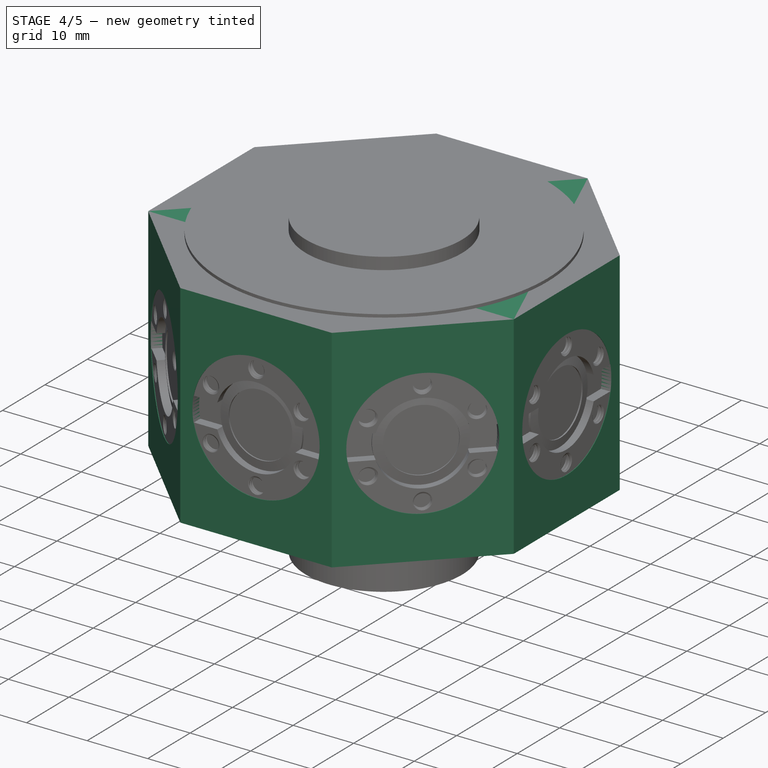
[diagram: stage 4 of 5 — iso view after this stage's code; geometry added in this stage tinted green]
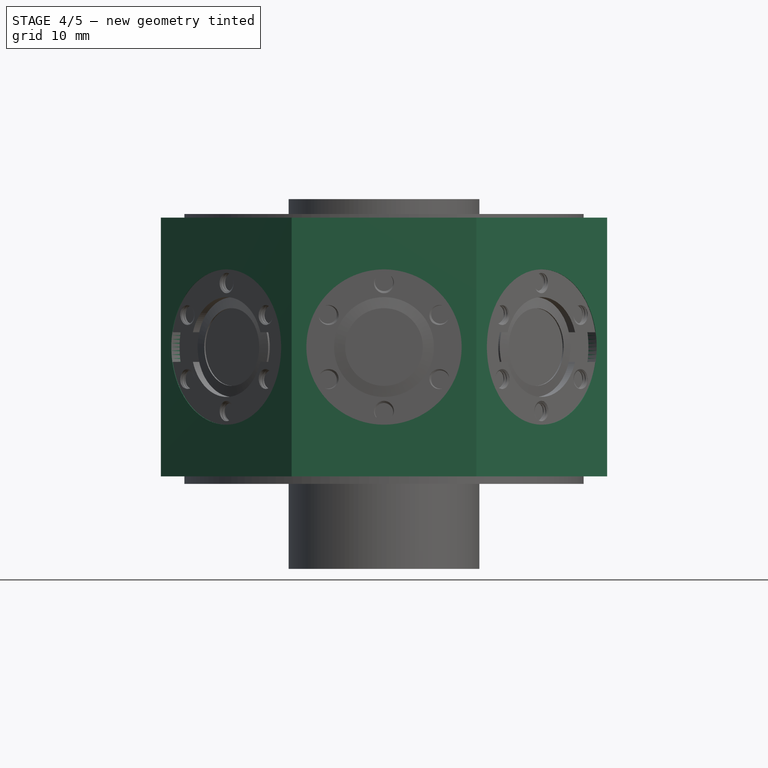
[diagram: stage 4 of 5 — front view after this stage's code; geometry added in this stage tinted green]
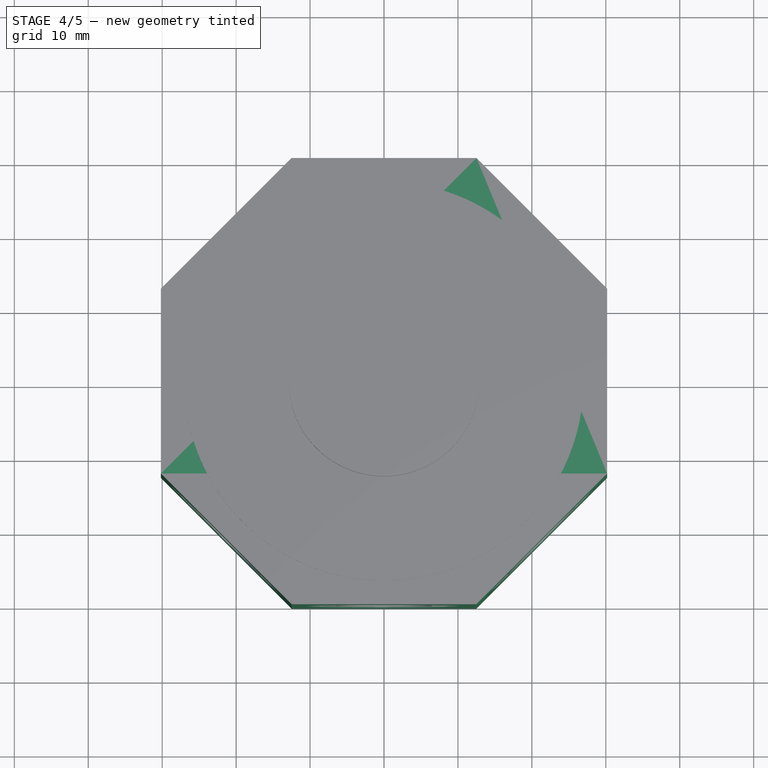
[diagram: stage 4 of 5 — top view after this stage's code; geometry added in this stage tinted green]
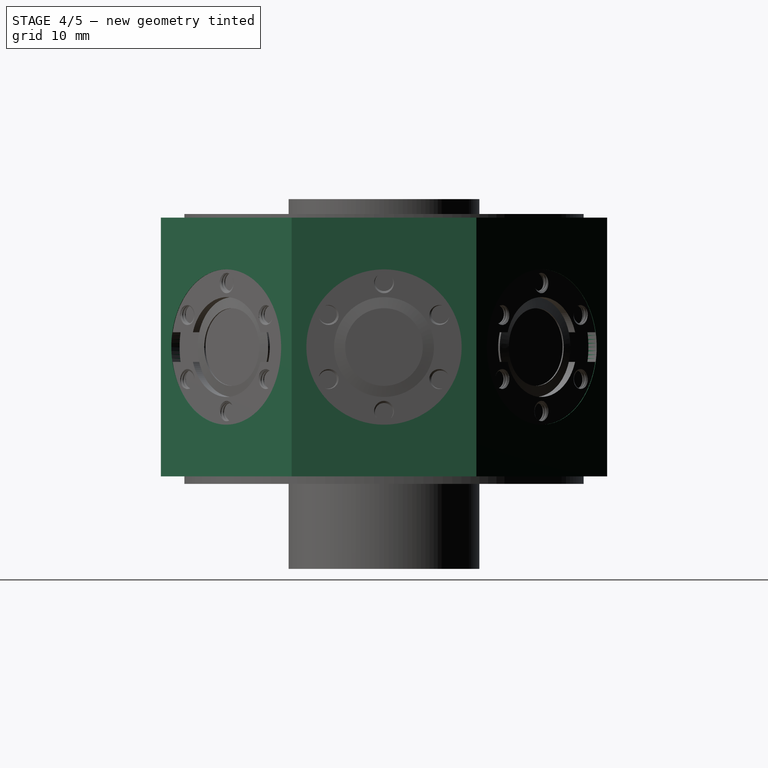
[diagram: stage 4 of 5 — right view after this stage's code; geometry added in this stage tinted green]
FEATURE [Part::Box] Box004  label="Cube004"
  AttacherType = Attacher::AttachEngine3D
  Height = 1.5
  Length = 6.75
  Placement = pos=(6.25,-2,0) rot=(0,0,1;0rad)
  Width = 4
  expr: .Placement.Base.x = <<ConflatFlange>>.cf_sealrecess / 2 - 0.5
  expr: .Placement.Base.y = -2
  expr: Length = (<<ConflatFlange>>.cf_od - <<ConflatFlange>>.cf_sealrecess) / 2 + 1
FEATURE [Part::Box] Box005  label="Cube005"
  AttacherType = Attacher::AttachEngine3D
  Height = 1.5
  Length = 6.75
  Placement = pos=(-13,-2,0) rot=(0,0,1;0rad)
  Width = 4
  expr: .Placement.Base.x = -<<ConflatFlange>>.cf_sealrecess / 2 + 0.5 - ((<<ConflatFlange>>.cf_od - <<ConflatFlange>>.cf_sealrecess) / 2 + 1)
  expr: .Placement.Base.y = -2
  expr: Length = (<<ConflatFlange>>.cf_od - <<ConflatFlange>>.cf_sealrecess) / 2 + 1
FEATURE [Part::Cylinder] Cylinder012
  Angle = 360
  AttacherType = Attacher::AttachEngine3D
  FirstAngle = 0
  Height = 0.22
  Radius = 5.25
  SecondAngle = 0
  expr: Height = 1.2 - 0.98
  expr: Radius = <<ConflatFlange>>.cf_knife / 2
FEATURE [Part::MultiFuse] Fusion009
  Placement = pos=(0,0,0) rot=(0,0,1;0.523599rad)
  Shapes = -> [Box005,Box004]
  expr: .Placement.Rotation.Angle = 360 / (<<ConflatFlange>>.cf_nbolts * 2)
FEATURE [Part::FeaturePython] ScrewTap  label="3x2-ScrewTap"  # Fasteners workbench fastener (typed FeaturePython)
  Placement = pos=(8.8,0,1) rot=(0,0,1;0rad)
  diameter = 29
  diameterCustom = 3
  invert = false
  leftHanded = false
  length = 2
  matchOuter = false
  offset = 0
  pitchCustom = 0.5
  thread = true
  type = 2
  expr: .Placement.Base.x = <<ConflatFlange>>.cf_boltcircle / 2
  expr: .Placement.Base.z = <<ConflatFlange>>.cf_thickness - <<ConflatFlange>>.cf_materialbelowtap
  expr: diameterCustom = <<ConflatFlange>>.cf_boltm
  expr: length = <<ConflatFlange>>.cf_thickness - <<ConflatFlange>>.cf_materialbelowtap
  expr: pitchCustom = <<ConflatFlange>>.cf_boltinclination
FEATURE [Spreadsheet::Sheet] Spreadsheet  label="ConflatFlange"
  CF = 0
  cells = A1='CF; B1='Outside Diameter; C1='Maximum tube diameter; D1='Number of bolts; E1='Bolt hole diameter; F1='Tap hole diameter; G1='Bolt Thread (metric); H1='Bot inclination; I1='Bolt Circle; J1='Bolt position tolerance; K1='Seal recess; L1='Knife edge; M1='Pipe attachment depth; N1='Setback (inner rotatable); O1='Thickness; Q1='Calculated Quantities; A2==hiddenref(.CF.String); B2(cf_od)==.B3; C2(cf_maxtubedia)==.C3; D2(cf_nbolts)==.D3; E2(cf_boltdia)==.E3; F2(cf_tapdia)==.F3; G2(cf_boltm)==.G3; H2(cf_boltinclination)==.H3; I2(cf_boltcircle)==.I3; J2(cf_bolttolerance)==.J3; K2(cf_sealrecess)==.K3; L2(cf_knife)==.L3; M2(cf_pipedepth)==.M3; N2(cf_setbackrot)==.N3; O2(cf_thickness)==.O3; Q2='Knife edge width; R2(cf__kfwidth)==(cf_sealrecess - cf_knife) / 2; A3='10; B3=25; C3=12; D3=6; E3=3.3; F3=2.39; G3=3; H3=0.5; I3=17.6; J3=0.1; K3=13.5; L3=10.5; M3=3; N3=0; O3=6; Q3='Knife height; R3(cf__kfheight)==tan(20 * 3.14 / 180) * cf__kfwidth; A4='16; B4=33.8; C4=19.4; D4=6; E4=4.4; F4=3.14; G4=4; H4=0.7; I4=27; J4=0.1; K4=21.4; L4=18.3; M4=3.3; N4=5.9; O4=7; A5='25; B5=54; C5=25.8; D5=4; E5=6.8; F5=4.77; G5=6; H5=1; I5=41.3; J5=0.2; K5=33; L5=27.7; M5=4.3; N5=6; O5=11.5; A6='40; B6=69.9; C6=44.5; D6=6; E6=6.8; F6=4.77; G6=6; H6=1; I6=58.7; J6=0.2; K6=48.3; L6=41.9; M6=4.3; N6=7.7; O6=12.5; A7='50; B7=85.7; C7=51; D7=8; E7=8.4; F7=6.47; G7=8; H7=1.25; I7=72.4; J7=0.2; K7=61.8; L7=55.9; M7=4.9; N7=9.7; O7=16; A8='63; B8=114.3; C8=70; D8=8; E8=8.4; F8=6.47; G8=8; H8=1.25; I8=92.2; J8=0.2; K8=82.5; L8=77.2; M8=6.4; N8=12.7; O8=17; A9='75; B9=117.4; C9=76.2; D9=10; E9=8.4; F9=6.47; G9=8; H9=1.25; I9=102.3; J9=0.2; K9=91.6; L9=85.2; M9=6.5; N9=13; O9=17.5; A10='100; B10=152.4; C10=108; D10=16; E10=8.4; F10=6.47; G10=8; H10=1.25; I10=130.3; J10=0.2; K10=120.6; L10=115.3; M10=7.2; N10=14.3; O10=19.5; A11='125; B11=171.5; C11=127; D11=18; E11=8.4; F11=6.47; G11=8; H11=1.25; I11=151.6; J11=0.2; K11=141.8; L11=136.3; M11=7.2; N11=14.3; O11=21; A12='160; B12=203.2; C12=159; D12=20; E12=8.4; F12=6.47; G12=8; H12=1.25; I12=181; J12=0.2; K12=171.4; L12=166.1; M12=8; N12=15.9; O12=21; A13='200; B13=254; C13=206; D13=24; E13=8.4; F13=6.47; G13=8; H13=1.25; I13=231.8; J13=0.2; K13=222.2; L13=216.9; M13=8.6; N13=17.2; O13=24; +88 more cells
  expr: .CF.Enum = cells[<<A3:|>>]
  expr: .cells.Bind.B2.O2 = tuple(.cells; <<B>> + str(hiddenref(CF) + 3); <<O>> + str(hiddenref(CF) + 3))
FEATURE [Sketcher::SketchObject] Sketch
  FullyConstrained = true
  MapMode = 5
  Support = -> [XY_Plane]
  sketch-geometry (9):
    g0: LineSegment StartX=30.1777 StartY=12.5 StartZ=0 EndX=12.5 EndY=30.1777 EndZ=0
    g1: LineSegment StartX=12.5 StartY=30.1777 StartZ=0 EndX=-12.5 EndY=30.1777 EndZ=0
    g2: LineSegment StartX=-12.5 StartY=30.1777 StartZ=0 EndX=-30.1777 EndY=12.5 EndZ=0
    g3: LineSegment StartX=-30.1777 StartY=12.5 StartZ=0 EndX=-30.1777 EndY=-12.5 EndZ=0
    g4: LineSegment StartX=-30.1777 StartY=-12.5 StartZ=0 EndX=-12.5 EndY=-30.1777 EndZ=0
    g5: LineSegment StartX=-12.5 StartY=-30.1777 StartZ=0 EndX=12.5 EndY=-30.1777 EndZ=0
    g6: LineSegment StartX=12.5 StartY=-30.1777 StartZ=0 EndX=30.1777 EndY=-12.5 EndZ=0
    g7: LineSegment StartX=30.1777 StartY=-12.5 StartZ=0 EndX=30.1777 EndY=12.5 EndZ=0
    g8: Circle CenterX=0 CenterY=0 CenterZ=0 NormalX=0 NormalY=0 NormalZ=1 AngleXU=0 Radius=32.6641
  constraints (20):
    c: Coincident(g0,g1)
    c: Coincident(g1,g2)
    c: Coincident(g2,g3)
    c: Coincident(g3,g4)
    c: Coincident(g4,g5)
    c: Coincident(g5,g6)
    c: Coincident(g6,g7)
    c: Coincident(g7,g0)
    c: Equal(g0, g1-g7) x7
    c: PointOnObject(g0,g8)
    c: PointOnObject(g1,g8)
    c: PointOnObject(g2,g8)
    c: PointOnObject(g3,g8)
    c: PointOnObject(g4,g8)
    c: PointOnObject(g5,g8)
    c: PointOnObject(g6,g8)
    c: PointOnObject(g7,g8)
    c: Coincident(g8,g-1)
    c: Perpendicular(g-1,g7)
    c: DistanceY(g7,g7) = 25
FEATURE [PartDesign::Pad] Pad
  Direction = (0,0,1)
  Length = 35
  Length2 = 10
  Profile = -> Sketch
  ReferenceAxis = -> Sketch [N_Axis]
  Type = 0
FEATURE [Part::Cylinder] Cylinder030
  Angle = 360
  AttacherType = Attacher::AttachEngine3D
  FirstAngle = 0
  Height = 5.98
  Placement = pos=(0,30.2,12.5) rot=(1,0,0;1.5708rad)
  Radius = 10.5
  SecondAngle = 0
FEATURE [Part::Compound] Compound005
  Links = -> [Cylinder030]
FEATURE [Part::Cylinder] Cylinder031
  Angle = 360
  AttacherType = Attacher::AttachEngine3D
  FirstAngle = 0
  Height = 5.98
  Placement = pos=(0,30.2,12.5) rot=(1,0,0;1.5708rad)
  Radius = 10.5
  SecondAngle = 0
FEATURE [Part::Compound] Compound006
  Links = -> [Cylinder031]
  Placement = pos=(0,0,0) rot=(0,0,1;0.785398rad)
FEATURE [Part::Cylinder] Cylinder032
  Angle = 360
  AttacherType = Attacher::AttachEngine3D
  FirstAngle = 0
  Height = 5.98
  Placement = pos=(0,30.2,12.5) rot=(1,0,0;1.5708rad)
  Radius = 10.5
  SecondAngle = 0
FEATURE [Part::Compound] Compound007
  Links = -> [Cylinder032]
  Placement = pos=(0,0,0) rot=(0,0,1;1.5708rad)
FEATURE [Part::Cylinder] Cylinder033
  Angle = 360
  AttacherType = Attacher::AttachEngine3D
  FirstAngle = 0
  Height = 5.98
  Placement = pos=(0,30.2,12.5) rot=(1,0,0;1.5708rad)
  Radius = 10.5
  SecondAngle = 0
FEATURE [Part::Compound] Compound008
  Links = -> [Cylinder033]
  Placement = pos=(0,0,0) rot=(0,0,1;2.35619rad)
FEATURE [Part::Cylinder] Cylinder034
  Angle = 360
  AttacherType = Attacher::AttachEngine3D
  FirstAngle = 0
  Height = 5.98
  Placement = pos=(0,30.2,12.5) rot=(1,0,0;1.5708rad)
  Radius = 10.5
  SecondAngle = 0
FEATURE [Part::Compound] Compound009
  Links = -> [Cylinder034]
  Placement = pos=(0,0,0) rot=(0,0,1;3.14159rad)
FEATURE [Part::Cylinder] Cylinder035
  Angle = 360
  AttacherType = Attacher::AttachEngine3D
  FirstAngle = 0
  Height = 5.98
  Placement = pos=(0,30.2,12.5) rot=(1,0,0;1.5708rad)
  Radius = 10.5
  SecondAngle = 0
FEATURE [Part::Compound] Compound010
  Links = -> [Cylinder035]
  Placement = pos=(0,0,0) rot=(0,0,1;4.71239rad)
FEATURE [Part::Cylinder] Cylinder036
  Angle = 360
  AttacherType = Attacher::AttachEngine3D
  FirstAngle = 0
  Height = 5.98
  Placement = pos=(0,30.2,12.5) rot=(1,0,0;1.5708rad)
  Radius = 10.5
  SecondAngle = 0
FEATURE [Part::Compound] Compound011
  Links = -> [Cylinder036]
  Placement = pos=(0,0,0) rot=(0,0,1;5.49779rad)
FEATURE [Part::Cylinder] Cylinder037
  Angle = 360
  AttacherType = Attacher::AttachEngine3D
  FirstAngle = 0
  Height = 5.98
  Placement = pos=(0,30.2,12.5) rot=(1,0,0;1.5708rad)
  Radius = 10.5
  SecondAngle = 0
FEATURE [Part::Compound] Compound012
  Links = -> [Cylinder037]
  Placement = pos=(0,0,0) rot=(0,0,1;3.92699rad)
FEATURE [Part::MultiFuse] Fusion010
  Shapes = -> [Compound005,Compound006,Compound007,Compound008,Compound009,Compound010,Compound011,Compound012]
FEATURE [Part::Cut] Cut
  Base = -> Body
  Tool = -> Fusion010
FEATURE [Part::Box] Box006  label="Cube006"
  AttacherType = Attacher::AttachEngine3D
  Height = 1.5
  Length = 6.75
  Placement = pos=(6.25,-2,0) rot=(0,0,1;0rad)
  Width = 4
  expr: .Placement.Base.x = <<ConflatFlange>>.cf_sealrecess / 2 - 0.5
  expr: .Placement.Base.y = -2
  expr: Length = (<<ConflatFlange>>.cf_od - <<ConflatFlange>>.cf_sealrecess) / 2 + 1
FEATURE [Part::Box] Box007  label="Cube007"
  AttacherType = Attacher::AttachEngine3D
  Height = 1.5
  Length = 6.75
  Placement = pos=(-13,-2,0) rot=(0,0,1;0rad)
  Width = 4
  expr: .Placement.Base.x = -<<ConflatFlange>>.cf_sealrecess / 2 + 0.5 - ((<<ConflatFlange>>.cf_od - <<ConflatFlange>>.cf_sealrecess) / 2 + 1)
  expr: .Placement.Base.y = -2
  expr: Length = (<<ConflatFlange>>.cf_od - <<ConflatFlange>>.cf_sealrecess) / 2 + 1
FEATURE [Part::Cone] Cone003
  Angle = 360
  AttacherType = Attacher::AttachEngine3D
  Height = 0.22
  Radius1 = 5.25
  Radius2 = 6.75
  expr: Height = 1.2 - 0.98
  expr: Radius1 = <<ConflatFlange>>.cf_knife / 2
  expr: Radius2 = <<ConflatFlange>>.cf_sealrecess / 2
FEATURE [Part::Cylinder] Cylinder038  label="Blank003"
  Angle = 360
  AttacherType = Attacher::AttachEngine3D
  FirstAngle = 0
  Height = 6
  Radius = 12.5
  SecondAngle = 0
  expr: Height = <<ConflatFlange>>.cf_thickness
  expr: Radius = <<ConflatFlange>>.cf_od / 2
FEATURE [Part::Cylinder] Cylinder039  label="SealRecess003"
  Angle = 360
  AttacherType = Attacher::AttachEngine3D
  FirstAngle = 0
  Height = 1.2
  Radius = 6.75
  SecondAngle = 0
  expr: Radius = <<ConflatFlange>>.cf_sealrecess / 2
FEATURE [Part::Cut] Cut026
  Base = -> Cylinder038
  Tool = -> Cylinder039
FEATURE [Part::Cylinder] Cylinder040
  Angle = 360
  AttacherType = Attacher::AttachEngine3D
  FirstAngle = 0
  Height = 0.22
  Radius = 5.25
  SecondAngle = 0
  expr: Height = 1.2 - 0.98
  expr: Radius = <<ConflatFlange>>.cf_knife / 2
FEATURE [Part::Cut] Cut027  label="KnifeEdge003"
  Base = -> Cone003
  Placement = pos=(0,0,0.98) rot=(0,0,1;0rad)
  Tool = -> Cylinder040
FEATURE [Part::Cylinder] Cylinder041
  Angle = 360
  AttacherType = Attacher::AttachEngine3D
  FirstAngle = 0
  Height = 1.5
  Radius = 6.75
  SecondAngle = 0
  expr: Radius = <<ConflatFlange>>.cf_sealrecess / 2
FEATURE [Part::MultiFuse] Fusion011  label="UndrilledBlank003"
  Shapes = -> [Cut026,Cut027]
FEATURE [Part::MultiFuse] Fusion012
  Placement = pos=(0,0,0) rot=(0,0,1;0.523599rad)
  Shapes = -> [Box007,Box006]
  expr: .Placement.Rotation.Angle = 360 / (<<ConflatFlange>>.cf_nbolts * 2)
FEATURE [Part::Cut] Cut029  label="LeakTestGrooves004"
  Base = -> Fusion012
  Tool = -> Cylinder041
FEATURE [Part::FeaturePython] ScrewTap001  label="3x2-ScrewTap001"  # Fasteners workbench fastener (typed FeaturePython)
  Placement = pos=(8.8,0,1) rot=(0,0,1;0rad)
  diameter = 29
  diameterCustom = 3
  invert = false
  leftHanded = false
  length = 2
  matchOuter = false
  offset = 0
  pitchCustom = 0.5
  thread = true
  type = 2
  expr: .Placement.Base.x = <<ConflatFlange>>.cf_boltcircle / 2
  expr: .Placement.Base.z = <<ConflatFlange>>.cf_thickness - <<ConflatFlange>>.cf_materialbelowtap
  expr: diameterCustom = <<ConflatFlange>>.cf_boltm
  expr: length = <<ConflatFlange>>.cf_thickness - <<ConflatFlange>>.cf_materialbelowtap
  expr: pitchCustom = <<ConflatFlange>>.cf_boltinclination
FEATURE [Part::FeaturePython] Array003  label="BoltHoleArray003"  # Draft array (typed FeaturePython)
  AlwaysSyncPlacement = false
  Angle = 360
  ArrayType = 1
  Axis = (0,0,1)
  Base = -> ScrewTap001
  Center = (0,0,0)
  Count = 6
  ExpandArray = false
  Fuse = false
  IntervalAxis = (0,0,0)
  IntervalX = (50,0,0)
  IntervalY = (0,50,0)
  IntervalZ = (0,0,50)
  NumberCircles = 3
  NumberPolar = 6
  NumberX = 2
  NumberY = 2
  NumberZ = 1
  PlacementList = 6 placements: [(8.8,0,1),(4.4,7.62102,1),(-4.4,7.62102,1),(-8.8,1.07769e-15,1),(-4.4,-7.62102,1),(4.4,-7.62102,1)]
  RadialDistance = 50
  ScaleList = (6) [(1,1,1),(1,1,1),(1,1,1),(1,1,1),(1,1,1),(1,1,1)]
  Symmetry = 1
  TangentialDistance = 25
  expr: NumberPolar = <<ConflatFlange>>.cf_nbolts
FEATURE [Part::Cut] Cut028  label="BlankFlange_NonRotatable_Tapped_NoGrooves001"
  Base = -> Fusion011
  Tool = -> Array003
FEATURE [Part::Cut] Cut030  label="BlankFlange_NonRotatable_Tapped001"
  Base = -> Cut028
  Placement = pos=(0,0,0) rot=(0,0,-1;0.523599rad)
  Tool = -> Cut029
FEATURE [Part::Compound] Compound013
  Links = -> [Cut030]
  Placement = pos=(0,30.1,12.5) rot=(1,0,0;1.5708rad)
FEATURE [Part::Compound] Compound014
  Links = -> [Compound013]
  Placement = pos=(0,0,0) rot=(0,0,1;0.785398rad)
FEATURE [Part::Compound] Compound016
  Links = -> [Compound015]
  Placement = pos=(0,0,0) rot=(0,0,1;1.5708rad)
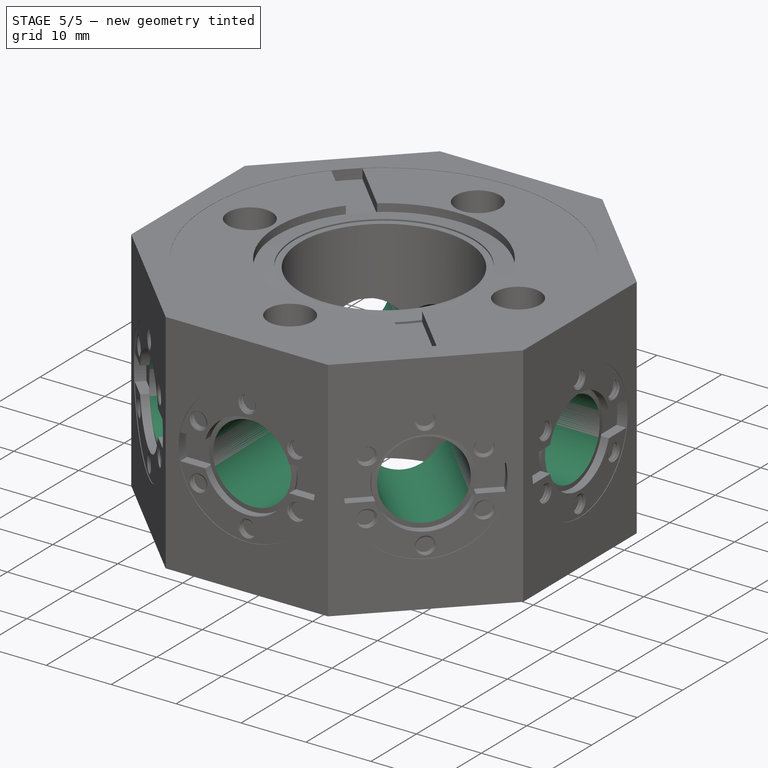
[diagram: stage 5 of 5 — iso view after this stage's code; geometry added in this stage tinted green]
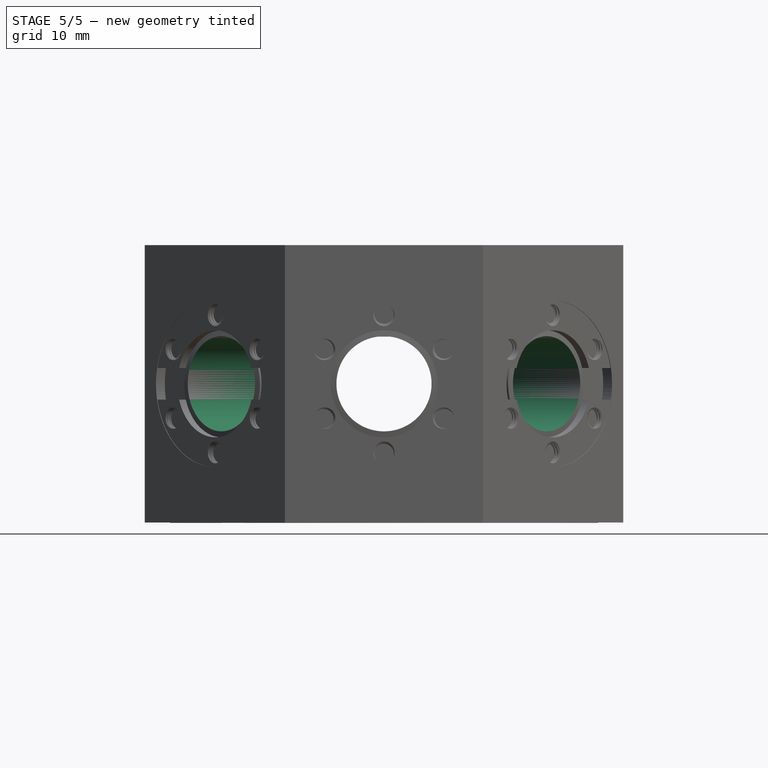
[diagram: stage 5 of 5 — front view after this stage's code; geometry added in this stage tinted green]
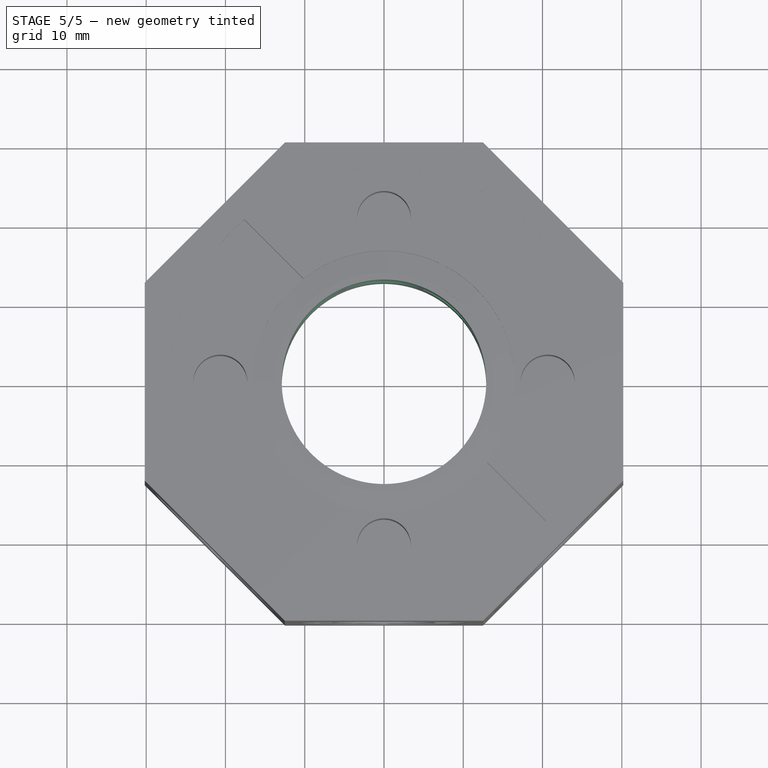
[diagram: stage 5 of 5 — top view after this stage's code; geometry added in this stage tinted green]
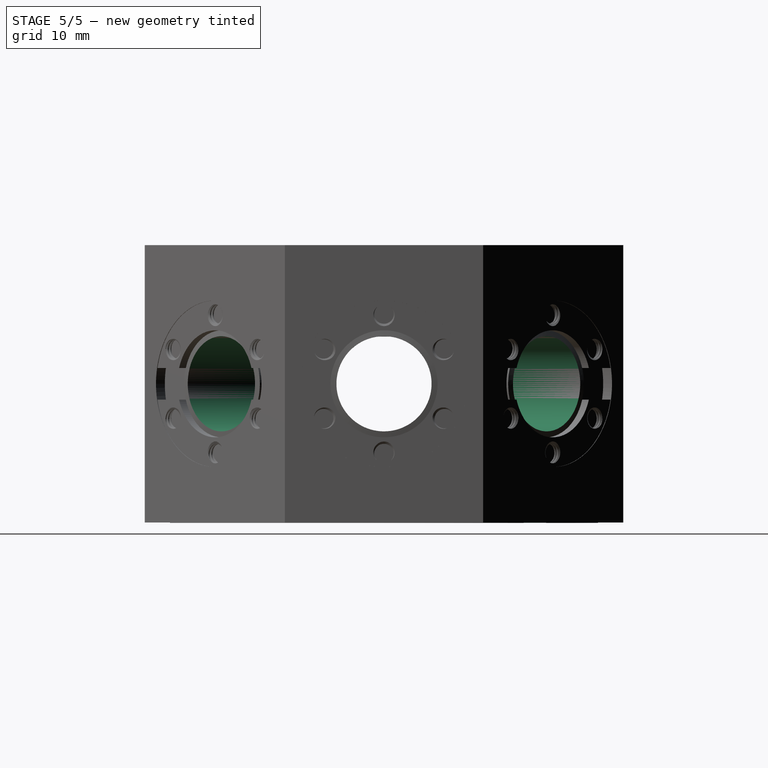
[diagram: stage 5 of 5 — right view after this stage's code; geometry added in this stage tinted green]
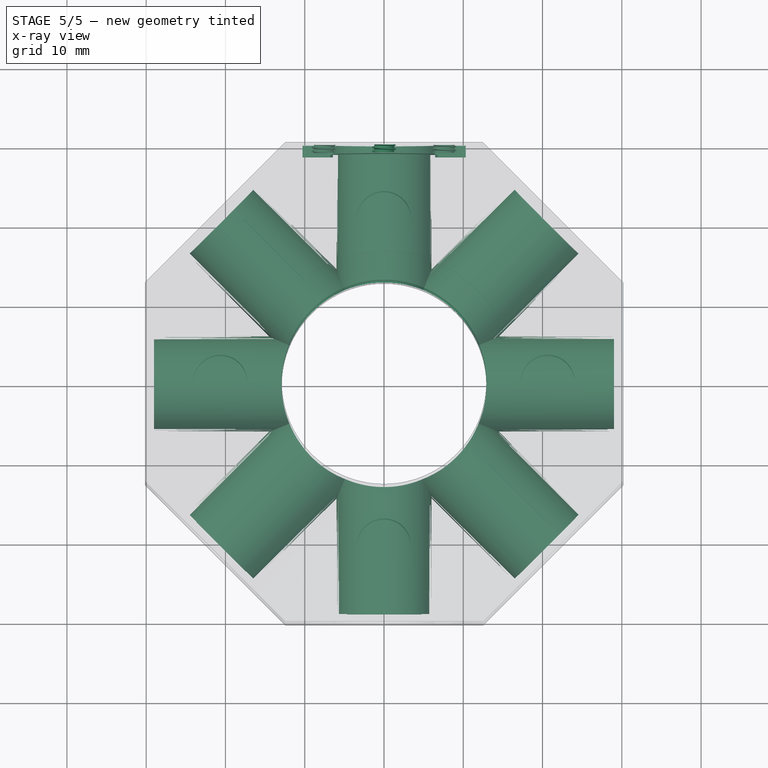
[diagram: stage 5 of 5 — x-ray composite at the top view; earlier geometry ghosted, this stage's added geometry solid]
FEATURE [Part::Cone] Cone002
  Angle = 360
  AttacherType = Attacher::AttachEngine3D
  Height = 0.22
  Radius1 = 5.25
  Radius2 = 6.75
  expr: Height = 1.2 - 0.98
  expr: Radius1 = <<ConflatFlange>>.cf_knife / 2
  expr: Radius2 = <<ConflatFlange>>.cf_sealrecess / 2
FEATURE [Part::Cylinder] Cylinder010  label="Blank002"
  Angle = 360
  AttacherType = Attacher::AttachEngine3D
  FirstAngle = 0
  Height = 6
  Radius = 12.5
  SecondAngle = 0
  expr: Height = <<ConflatFlange>>.cf_thickness
  expr: Radius = <<ConflatFlange>>.cf_od / 2
FEATURE [Part::Cylinder] Cylinder011  label="SealRecess002"
  Angle = 360
  AttacherType = Attacher::AttachEngine3D
  FirstAngle = 0
  Height = 1.2
  Radius = 6.75
  SecondAngle = 0
  expr: Radius = <<ConflatFlange>>.cf_sealrecess / 2
FEATURE [Part::Cut] Cut008
  Base = -> Cylinder010
  Tool = -> Cylinder011
FEATURE [Part::Cut] Cut009  label="KnifeEdge002"
  Base = -> Cone002
  Placement = pos=(0,0,0.98) rot=(0,0,1;0rad)
  Tool = -> Cylinder012
FEATURE [Part::Cylinder] Cylinder026
  Angle = 360
  AttacherType = Attacher::AttachEngine3D
  FirstAngle = 0
  Height = 1.5
  Radius = 6.75
  SecondAngle = 0
  expr: Radius = <<ConflatFlange>>.cf_sealrecess / 2
FEATURE [Part::MultiFuse] Fusion002  label="UndrilledBlank002"
  Shapes = -> [Cut008,Cut009]
FEATURE [Part::Cut] Cut022  label="LeakTestGrooves03"
  Base = -> Fusion009
  Tool = -> Cylinder026
FEATURE [Part::FeaturePython] Array002  label="BoltHoleArray002"  # Draft array (typed FeaturePython)
  AlwaysSyncPlacement = false
  Angle = 360
  ArrayType = 1
  Axis = (0,0,1)
  Base = -> ScrewTap
  Center = (0,0,0)
  Count = 6
  ExpandArray = false
  Fuse = false
  IntervalAxis = (0,0,0)
  IntervalX = (50,0,0)
  IntervalY = (0,50,0)
  IntervalZ = (0,0,50)
  NumberCircles = 3
  NumberPolar = 6
  NumberX = 2
  NumberY = 2
  NumberZ = 1
  PlacementList = 6 placements: [(8.8,0,1),(4.4,7.62102,1),(-4.4,7.62102,1),(-8.8,1.07769e-15,1),(-4.4,-7.62102,1),(4.4,-7.62102,1)]
  RadialDistance = 50
  ScaleList = (6) [(1,1,1),(1,1,1),(1,1,1),(1,1,1),(1,1,1),(1,1,1)]
  Symmetry = 1
  TangentialDistance = 25
  expr: NumberPolar = <<ConflatFlange>>.cf_nbolts
FEATURE [Part::Cut] Cut010  label="BlankFlange_NonRotatable_Tapped_NoGrooves"
  Base = -> Fusion002
  Tool = -> Array002
FEATURE [Part::Cut] Cut025  label="BlankFlange_NonRotatable_Tapped"
  Base = -> Cut010
  Placement = pos=(0,0,0) rot=(0,0,1;-0.523599rad)
  Tool = -> Cut022
FEATURE [PartDesign::Body] Body
  Group = -> [Sketch,Pad]
  Origin = -> Origin
  Placement = pos=(0,0,-5) rot=(0,0,1;0rad)
  Tip = -> Pad
FEATURE [Part::Cylinder] Cylinder
  Angle = 360
  AttacherType = Attacher::AttachEngine3D
  FirstAngle = 0
  Height = 60.4
  Placement = pos=(0,30.2,12.5) rot=(1,0,0;1.5708rad)
  Radius = 6
  SecondAngle = 0
FEATURE [Part::Cylinder] Cylinder027
  Angle = 360
  AttacherType = Attacher::AttachEngine3D
  FirstAngle = 0
  Height = 60.4
  Placement = pos=(0,30.2,12.5) rot=(1,0,0;1.5708rad)
  Radius = 6
  SecondAngle = 0
FEATURE [Part::Cylinder] Cylinder028
  Angle = 360
  AttacherType = Attacher::AttachEngine3D
  FirstAngle = 0
  Height = 60.4
  Placement = pos=(0,30.2,12.5) rot=(1,0,0;1.5708rad)
  Radius = 6
  SecondAngle = 0
FEATURE [Part::Compound] Compound
  Links = -> [Cylinder027]
  Placement = pos=(0,0,0) rot=(0,0,1;0.785398rad)
FEATURE [Part::Compound] Compound001
  Links = -> [Cylinder028]
  Placement = pos=(0,0,0) rot=(0,0,1;1.5708rad)
FEATURE [Part::Cylinder] Cylinder029
  Angle = 360
  AttacherType = Attacher::AttachEngine3D
  FirstAngle = 0
  Height = 60.4
  Placement = pos=(0,30.2,12.5) rot=(1,0,0;1.5708rad)
  Radius = 6
  SecondAngle = 0
FEATURE [Part::Compound] Compound002
  Links = -> [Cylinder029]
  Placement = pos=(0,0,0) rot=(0,0,1;2.35619rad)
FEATURE [Part::MultiFuse] Fusion
  Shapes = -> [Cylinder,Compound,Compound001,Compound002]
FEATURE [Part::Compound] Compound003
  Links = -> [Cut025]
  Placement = pos=(0,30.1,12.5) rot=(1,0,0;1.5708rad)
FEATURE [Part::Compound] Compound004
  Links = -> [Compound003]
FEATURE [Part::MultiFuse] Fusion025
  Shapes = -> [Compound026,Compound004,Cut,Compound014,Compound016,Compound018,Compound020,Compound022,Compound024]
FEATURE [Part::Cut] Cut061
  Base = -> Fusion025
  Tool = -> Fusion
FEATURE [Part::Box] Box  label="Cube"
  AttacherType = Attacher::AttachEngine3D
  Height = 1.5
  Length = 11.5
  Placement = pos=(16,-2,0) rot=(0,0,1;0rad)
  Width = 4
  expr: .Placement.Base.x = <<ConflatFlange001>>.cf_sealrecess / 2 - 0.5
  expr: .Placement.Base.y = -2
  expr: Length = (<<ConflatFlange001>>.cf_od - <<ConflatFlange001>>.cf_sealrecess) / 2 + 1
FEATURE [Part::Box] Box001  label="Cube001"
  AttacherType = Attacher::AttachEngine3D
  Height = 1.5
  Length = 11.5
  Placement = pos=(-27.5,-2,0) rot=(0,0,1;0rad)
  Width = 4
  expr: .Placement.Base.x = -<<ConflatFlange001>>.cf_sealrecess / 2 + 0.5 - ((<<ConflatFlange001>>.cf_od - <<ConflatFlange001>>.cf_sealrecess) / 2 + 1)
  expr: .Placement.Base.y = -2
  expr: Length = (<<ConflatFlange001>>.cf_od - <<ConflatFlange001>>.cf_sealrecess) / 2 + 1
FEATURE [Part::Cone] Cone
  Angle = 360
  AttacherType = Attacher::AttachEngine3D
  Height = 0.22
  Radius1 = 13.85
  Radius2 = 16.5
  expr: Height = 1.2 - 0.98
  expr: Radius1 = <<ConflatFlange001>>.cf_knife / 2
  expr: Radius2 = <<ConflatFlange001>>.cf_sealrecess / 2
FEATURE [Part::Cylinder] Cylinder066  label="Blank"
  Angle = 360
  AttacherType = Attacher::AttachEngine3D
  FirstAngle = 0
  Height = 11.5
  Radius = 27
  SecondAngle = 0
  expr: Height = <<ConflatFlange001>>.cf_thickness
  expr: Radius = <<ConflatFlange001>>.cf_od / 2
FEATURE [Part::Cylinder] Cylinder001  label="SealRecess"
  Angle = 360
  AttacherType = Attacher::AttachEngine3D
  FirstAngle = 0
  Height = 1.2
  Radius = 16.5
  SecondAngle = 0
  expr: Radius = <<ConflatFlange001>>.cf_sealrecess / 2
FEATURE [Part::Cut] Cut062
  Base = -> Cylinder066
  Tool = -> Cylinder001
FEATURE [Part::Cylinder] Cylinder002
  Angle = 360
  AttacherType = Attacher::AttachEngine3D
  FirstAngle = 0
  Height = 0.22
  Radius = 13.85
  SecondAngle = 0
  expr: Height = 1.2 - 0.98
  expr: Radius = <<ConflatFlange001>>.cf_knife / 2
FEATURE [Part::Cut] Cut001  label="KnifeEdge"
  Base = -> Cone
  Placement = pos=(0,0,0.98) rot=(0,0,1;0rad)
  Tool = -> Cylinder002
FEATURE [Part::Cylinder] Cylinder003
  Angle = 360
  AttacherType = Attacher::AttachEngine3D
  FirstAngle = 0
  Height = 11.5
  Placement = pos=(20.65,0,0) rot=(0,0,1;0rad)
  Radius = 3.4
  SecondAngle = 0
  expr: .Placement.Base.x = <<ConflatFlange001>>.cf_boltcircle / 2
  expr: Height = <<ConflatFlange001>>.cf_thickness
  expr: Radius = <<ConflatFlange001>>.cf_boltdia / 2
FEATURE [Part::FeaturePython] Array  label="BoltHoleArray"  # Draft array (typed FeaturePython)
  AlwaysSyncPlacement = false
  Angle = 360
  ArrayType = 1
  Axis = (0,0,1)
  Base = -> Cylinder003
  Center = (0,0,0)
  Count = 4
  ExpandArray = false
  Fuse = false
  IntervalAxis = (0,0,0)
  IntervalX = (50,0,0)
  IntervalY = (0,50,0)
  IntervalZ = (0,0,50)
  NumberCircles = 3
  NumberPolar = 4
  NumberX = 2
  NumberY = 2
  NumberZ = 1
  PlacementList = 4 placements: [(20.65,0,0),(0,20.65,0),(-20.65,2.5289e-15,0),(-4.58522e-15,-20.65,0)]
  RadialDistance = 50
  ScaleList = (4) [(1,1,1),(1,1,1),(1,1,1),(1,1,1)]
  Symmetry = 1
  TangentialDistance = 25
  expr: NumberPolar = <<ConflatFlange001>>.cf_nbolts
FEATURE [Part::Cylinder] Cylinder024
  Angle = 360
  AttacherType = Attacher::AttachEngine3D
  FirstAngle = 0
  Height = 1.5
  Radius = 16.5
  SecondAngle = 0
  expr: Radius = <<ConflatFlange001>>.cf_sealrecess / 2
FEATURE [Part::MultiFuse] Fusion026  label="UndrilledBlank"
  Shapes = -> [Cut062,Cut001]
FEATURE [Part::Cut] Cut002  label="BlankFlange_NonRotatable_NoGrooves"
  Base = -> Fusion026
  Tool = -> Array
FEATURE [Part::MultiFuse] Fusion007
  Placement = pos=(0,0,0) rot=(0,0,1;0.785398rad)
  Shapes = -> [Box001,Box]
  expr: .Placement.Rotation.Angle = 360 / (<<ConflatFlange001>>.cf_nbolts * 2)
FEATURE [Part::Cut] Cut019  label="LeakTestGrooves01"
  Base = -> Fusion007
  Tool = -> Cylinder024
FEATURE [Part::Cut] Cut020  label="BlankFlange_NonRotatable"
  Base = -> Cut002
  Placement = pos=(0,0,-5.05) rot=(0,0,1;0rad)
  Tool = -> Cut019
FEATURE [Part::Cut] Cut063
  Base = -> Cut061
  Tool = -> Fusion027
FEATURE [Part::MultiFuse] Fusion030
  Shapes = -> [Cut020,Cut067,Cut063]
FEATURE [Part::Cut] Cut069
  Base = -> Fusion030
  Tool = -> Cylinder074
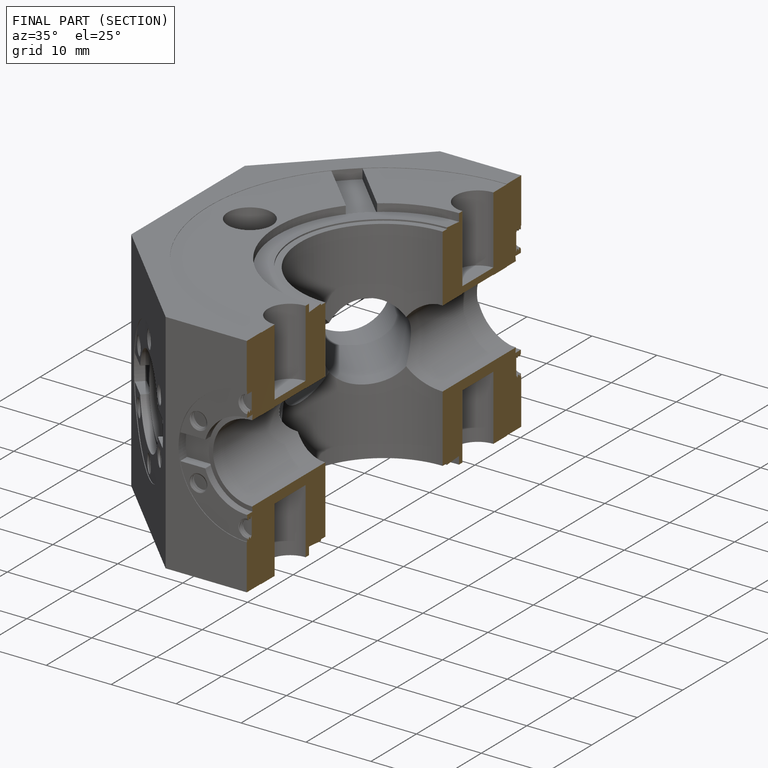
[diagram: finished part — half-section view (interior)]
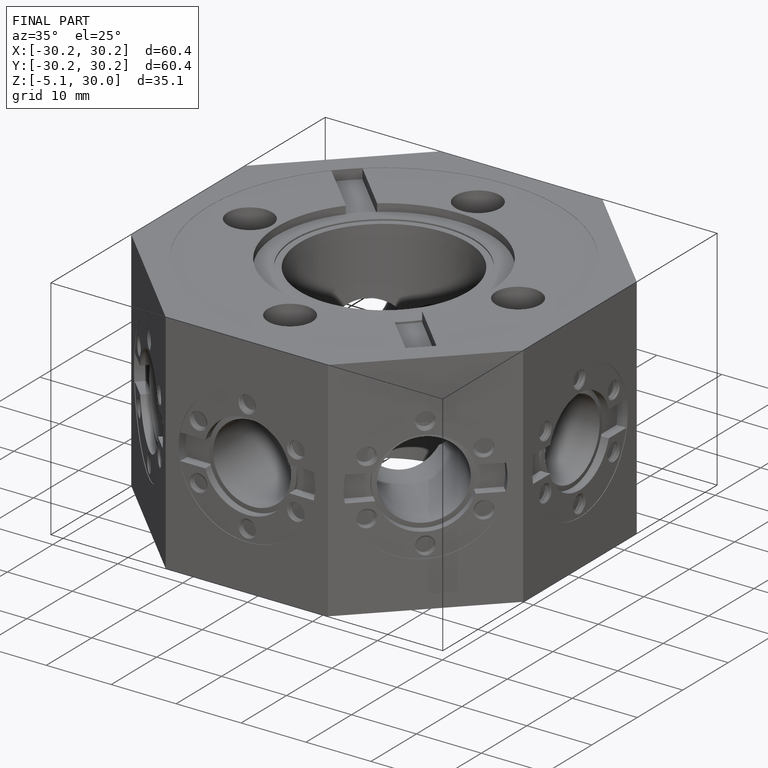
[diagram: finished part — iso view with bounding-box wireframe]
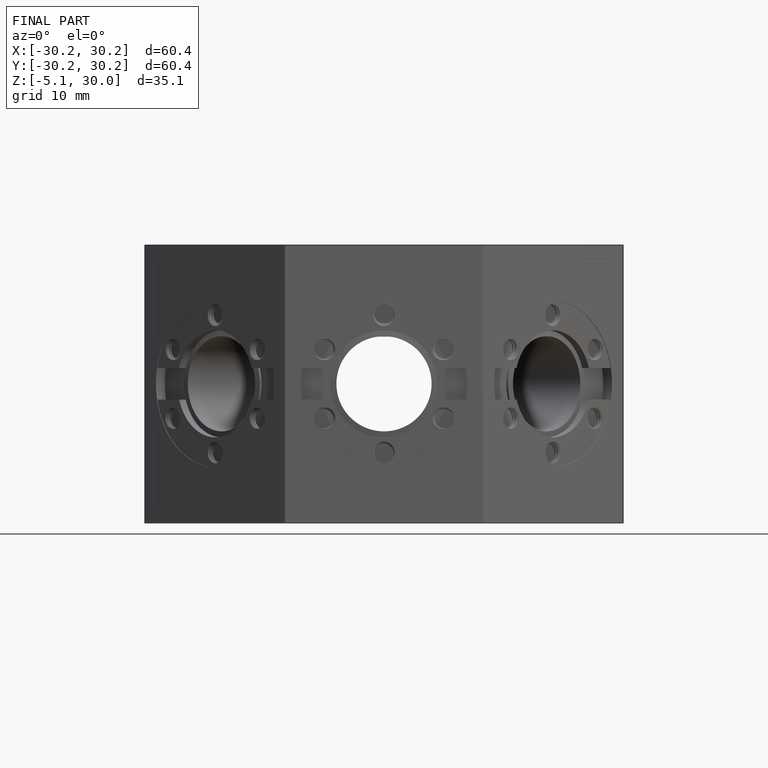
[diagram: finished part — front view with bounding-box wireframe]
